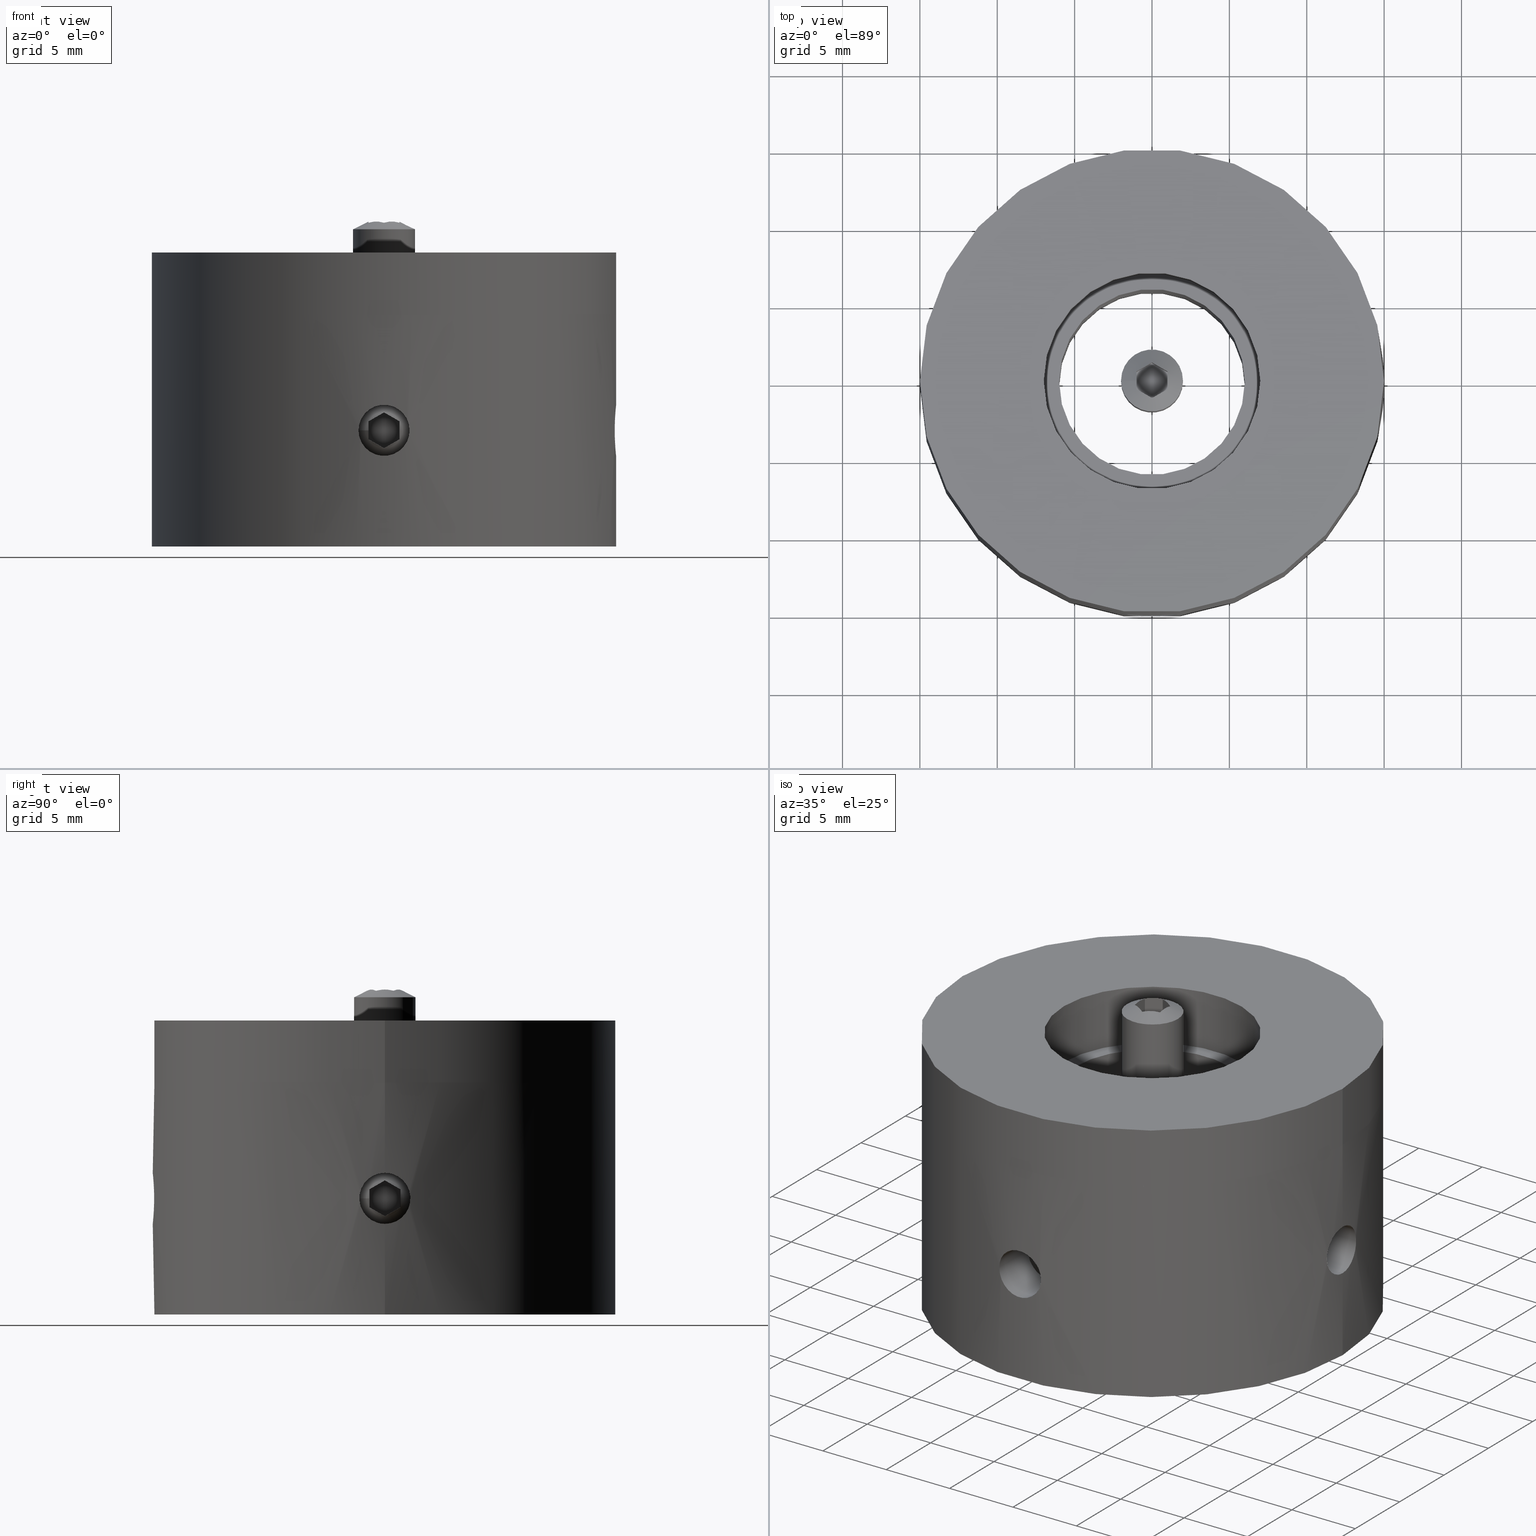
[diagram: canonical four-view strip — front | top / right | iso, engineering-drawing reading convention]
A machine part, canonical four-view strip (front | top / right | iso — engineering-drawing reading convention). The complete STEP part file that produces these views, byte-faithful:
ISO-10303-21;
HEADER;
FILE_DESCRIPTION( ( 'STEP AP203' ), '1' );
FILE_NAME( ' ', '  ', ( '  ' ), ( '  ' ), 'PSStep 10.0', '  ', '  ' );
FILE_SCHEMA( ( 'CONFIG_CONTROL_DESIGN' ) );
ENDSEC;
DATA;
#1 = DESIGN_CONTEXT( '', #115, 'design' );
#2 = APPLICATION_PROTOCOL_DEFINITION( 'INTERNATIONAL STANDARD', 'config_control_design', 1994, #115 );
#3 = PRODUCT_CATEGORY_RELATIONSHIP( 'NONE', 'NONE', #116, #117 );
#4 = DATE_AND_TIME( #118, #119 );
#5 = DATE_TIME_ROLE( 'creation_date' );
#6 = DATE_TIME_ROLE( 'classification_date' );
#7 = PERSON_AND_ORGANIZATION_ROLE( 'creator' );
#8 = PERSON_AND_ORGANIZATION_ROLE( 'design_supplier' );
#9 = PERSON_AND_ORGANIZATION_ROLE( 'classification_officer' );
#10 = PERSON_AND_ORGANIZATION_ROLE( 'design_owner' );
#11 = APPROVAL_PERSON_ORGANIZATION( #120, #121, #122 );
#12 = APPROVAL_DATE_TIME( #4, #121 );
#13 = CC_DESIGN_APPROVAL( #121, ( #123, #124, #125 ) );
#14 = CC_DESIGN_DATE_AND_TIME_ASSIGNMENT( #4, #5, ( #125 ) );
#15 = CC_DESIGN_DATE_AND_TIME_ASSIGNMENT( #4, #6, ( #123 ) );
#16 = CC_DESIGN_PERSON_AND_ORGANIZATION_ASSIGNMENT( #120, #10, ( #126 ) );
#17 = CC_DESIGN_PERSON_AND_ORGANIZATION_ASSIGNMENT( #120, #7, ( #125 ) );
#18 = CC_DESIGN_PERSON_AND_ORGANIZATION_ASSIGNMENT( #120, #7, ( #124 ) );
#19 = CC_DESIGN_PERSON_AND_ORGANIZATION_ASSIGNMENT( #120, #8, ( #124 ) );
#20 = CC_DESIGN_SECURITY_CLASSIFICATION( #123, ( #124 ) );
#21 = CC_DESIGN_PERSON_AND_ORGANIZATION_ASSIGNMENT( #120, #9, ( #123 ) );
#22 = SHAPE_DEFINITION_REPRESENTATION( #127, #128 );
#23 = DESIGN_CONTEXT( '', #129, 'design' );
#24 = APPLICATION_PROTOCOL_DEFINITION( 'INTERNATIONAL STANDARD', 'config_control_design', 1994, #129 );
#25 = PRODUCT_CATEGORY_RELATIONSHIP( 'NONE', 'NONE', #130, #131 );
#26 = DATE_AND_TIME( #132, #133 );
#27 = DATE_TIME_ROLE( 'creation_date' );
#28 = DATE_TIME_ROLE( 'classification_date' );
#29 = PERSON_AND_ORGANIZATION_ROLE( 'creator' );
#30 = PERSON_AND_ORGANIZATION_ROLE( 'design_supplier' );
#31 = PERSON_AND_ORGANIZATION_ROLE( 'classification_officer' );
#32 = PERSON_AND_ORGANIZATION_ROLE( 'design_owner' );
#33 = APPROVAL_PERSON_ORGANIZATION( #134, #135, #136 );
#34 = APPROVAL_DATE_TIME( #26, #135 );
#35 = CC_DESIGN_APPROVAL( #135, ( #137, #138, #139 ) );
#36 = CC_DESIGN_DATE_AND_TIME_ASSIGNMENT( #26, #27, ( #139 ) );
#37 = CC_DESIGN_DATE_AND_TIME_ASSIGNMENT( #26, #28, ( #137 ) );
#38 = CC_DESIGN_PERSON_AND_ORGANIZATION_ASSIGNMENT( #134, #32, ( #140 ) );
#39 = CC_DESIGN_PERSON_AND_ORGANIZATION_ASSIGNMENT( #134, #29, ( #139 ) );
#40 = CC_DESIGN_PERSON_AND_ORGANIZATION_ASSIGNMENT( #134, #29, ( #138 ) );
#41 = CC_DESIGN_PERSON_AND_ORGANIZATION_ASSIGNMENT( #134, #30, ( #138 ) );
#42 = CC_DESIGN_SECURITY_CLASSIFICATION( #137, ( #138 ) );
#43 = CC_DESIGN_PERSON_AND_ORGANIZATION_ASSIGNMENT( #134, #31, ( #137 ) );
#44 = SHAPE_DEFINITION_REPRESENTATION( #141, #142 );
#45 = DESIGN_CONTEXT( '', #143, 'design' );
#46 = APPLICATION_PROTOCOL_DEFINITION( 'INTERNATIONAL STANDARD', 'config_control_design', 1994, #143 );
#47 = PRODUCT_CATEGORY_RELATIONSHIP( 'NONE', 'NONE', #144, #145 );
#48 = DATE_AND_TIME( #146, #147 );
#49 = DATE_TIME_ROLE( 'creation_date' );
#50 = DATE_TIME_ROLE( 'classification_date' );
#51 = PERSON_AND_ORGANIZATION_ROLE( 'creator' );
#52 = PERSON_AND_ORGANIZATION_ROLE( 'design_supplier' );
#53 = PERSON_AND_ORGANIZATION_ROLE( 'classification_officer' );
#54 = PERSON_AND_ORGANIZATION_ROLE( 'design_owner' );
#55 = APPROVAL_PERSON_ORGANIZATION( #148, #149, #150 );
#56 = APPROVAL_DATE_TIME( #48, #149 );
#57 = CC_DESIGN_APPROVAL( #149, ( #151, #152, #153 ) );
#58 = CC_DESIGN_DATE_AND_TIME_ASSIGNMENT( #48, #49, ( #153 ) );
#59 = CC_DESIGN_DATE_AND_TIME_ASSIGNMENT( #48, #50, ( #151 ) );
#60 = CC_DESIGN_PERSON_AND_ORGANIZATION_ASSIGNMENT( #148, #54, ( #154 ) );
#61 = CC_DESIGN_PERSON_AND_ORGANIZATION_ASSIGNMENT( #148, #51, ( #153 ) );
#62 = CC_DESIGN_PERSON_AND_ORGANIZATION_ASSIGNMENT( #148, #51, ( #152 ) );
#63 = CC_DESIGN_PERSON_AND_ORGANIZATION_ASSIGNMENT( #148, #52, ( #152 ) );
#64 = CC_DESIGN_SECURITY_CLASSIFICATION( #151, ( #152 ) );
#65 = CC_DESIGN_PERSON_AND_ORGANIZATION_ASSIGNMENT( #148, #53, ( #151 ) );
#66 = SHAPE_DEFINITION_REPRESENTATION( #155, #156 );
#67 = DESIGN_CONTEXT( '', #157, 'design' );
#68 = APPLICATION_PROTOCOL_DEFINITION( 'INTERNATIONAL STANDARD', 'config_control_design', 1994, #157 );
#69 = PRODUCT_CATEGORY_RELATIONSHIP( 'NONE', 'NONE', #158, #159 );
#70 = DATE_AND_TIME( #160, #161 );
#71 = DATE_TIME_ROLE( 'creation_date' );
#72 = DATE_TIME_ROLE( 'classification_date' );
#73 = PERSON_AND_ORGANIZATION_ROLE( 'creator' );
#74 = PERSON_AND_ORGANIZATION_ROLE( 'design_supplier' );
#75 = PERSON_AND_ORGANIZATION_ROLE( 'classification_officer' );
#76 = PERSON_AND_ORGANIZATION_ROLE( 'design_owner' );
#77 = APPROVAL_PERSON_ORGANIZATION( #162, #163, #164 );
#78 = APPROVAL_DATE_TIME( #70, #163 );
#79 = CC_DESIGN_APPROVAL( #163, ( #165, #166, #167 ) );
#80 = CC_DESIGN_DATE_AND_TIME_ASSIGNMENT( #70, #71, ( #167 ) );
#81 = CC_DESIGN_DATE_AND_TIME_ASSIGNMENT( #70, #72, ( #165 ) );
#82 = CC_DESIGN_PERSON_AND_ORGANIZATION_ASSIGNMENT( #162, #76, ( #168 ) );
#83 = CC_DESIGN_PERSON_AND_ORGANIZATION_ASSIGNMENT( #162, #73, ( #167 ) );
#84 = CC_DESIGN_PERSON_AND_ORGANIZATION_ASSIGNMENT( #162, #73, ( #166 ) );
#85 = CC_DESIGN_PERSON_AND_ORGANIZATION_ASSIGNMENT( #162, #74, ( #166 ) );
#86 = CC_DESIGN_SECURITY_CLASSIFICATION( #165, ( #166 ) );
#87 = CC_DESIGN_PERSON_AND_ORGANIZATION_ASSIGNMENT( #162, #75, ( #165 ) );
#88 = SHAPE_DEFINITION_REPRESENTATION( #169, #170 );
#89 = DESIGN_CONTEXT( '', #171, 'design' );
#90 = APPLICATION_PROTOCOL_DEFINITION( 'INTERNATIONAL STANDARD', 'config_control_design', 1994, #171 );
#91 = PRODUCT_CATEGORY_RELATIONSHIP( 'NONE', 'NONE', #172, #173 );
#92 = DATE_AND_TIME( #174, #175 );
#93 = DATE_TIME_ROLE( 'creation_date' );
#94 = DATE_TIME_ROLE( 'classification_date' );
#95 = PERSON_AND_ORGANIZATION_ROLE( 'creator' );
#96 = PERSON_AND_ORGANIZATION_ROLE( 'design_supplier' );
#97 = PERSON_AND_ORGANIZATION_ROLE( 'classification_officer' );
#98 = PERSON_AND_ORGANIZATION_ROLE( 'design_owner' );
#99 = APPROVAL_PERSON_ORGANIZATION( #176, #177, #178 );
#100 = APPROVAL_DATE_TIME( #92, #177 );
#101 = CC_DESIGN_APPROVAL( #177, ( #179, #180, #181 ) );
#102 = CC_DESIGN_DATE_AND_TIME_ASSIGNMENT( #92, #93, ( #181 ) );
#103 = CC_DESIGN_DATE_AND_TIME_ASSIGNMENT( #92, #94, ( #179 ) );
#104 = CC_DESIGN_PERSON_AND_ORGANIZATION_ASSIGNMENT( #176, #98, ( #182 ) );
#105 = CC_DESIGN_PERSON_AND_ORGANIZATION_ASSIGNMENT( #176, #95, ( #181 ) );
#106 = CC_DESIGN_PERSON_AND_ORGANIZATION_ASSIGNMENT( #176, #95, ( #180 ) );
#107 = CC_DESIGN_PERSON_AND_ORGANIZATION_ASSIGNMENT( #176, #96, ( #180 ) );
#108 = CC_DESIGN_SECURITY_CLASSIFICATION( #179, ( #180 ) );
#109 = CC_DESIGN_PERSON_AND_ORGANIZATION_ASSIGNMENT( #176, #97, ( #179 ) );
#110 = SHAPE_DEFINITION_REPRESENTATION( #183, #184 );
#111 =  ( GEOMETRIC_REPRESENTATION_CONTEXT( 3 )GLOBAL_UNCERTAINTY_ASSIGNED_CONTEXT( ( #187 ) )GLOBAL_UNIT_ASSIGNED_CONTEXT( ( #189, #190, #191 ) )REPRESENTATION_CONTEXT( 'NONE', 'WORKSPACE' ) );
#115 = APPLICATION_CONTEXT( 'CONFIGURATION CONTROLLED 3D DESIGNS OF MECHANICAL PARTS AND ASSEMBLIES' );
#116 = PRODUCT_CATEGORY( 'part', 'NONE' );
#117 = PRODUCT_RELATED_PRODUCT_CATEGORY( 'detail', ' ', ( #126 ) );
#118 = CALENDAR_DATE( 2018, 1, 9 );
#119 = LOCAL_TIME( 8, 30, 14.0000000000000, #193 );
#120 = PERSON_AND_ORGANIZATION( #194, #195 );
#121 = APPROVAL( #196, 'SOLID MODEL' );
#122 = APPROVAL_ROLE( 'APPROVED' );
#123 = SECURITY_CLASSIFICATION( '', '', #197 );
#124 = PRODUCT_DEFINITION_FORMATION_WITH_SPECIFIED_SOURCE( ' ', 'NONE', #126, .NOT_KNOWN. );
#125 = PRODUCT_DEFINITION( 'NONE', 'NONE', #124, #1 );
#126 = PRODUCT( '1', '1', 'PART-1-DESC', ( #198 ) );
#127 = PRODUCT_DEFINITION_SHAPE( 'NONE', 'NONE', #125 );
#128 = GEOMETRICALLY_BOUNDED_WIREFRAME_SHAPE_REPRESENTATION( '1', ( #199, #200 ), #111 );
#129 = APPLICATION_CONTEXT( 'CONFIGURATION CONTROLLED 3D DESIGNS OF MECHANICAL PARTS AND ASSEMBLIES' );
#130 = PRODUCT_CATEGORY( 'part', 'NONE' );
#131 = PRODUCT_RELATED_PRODUCT_CATEGORY( 'detail', ' ', ( #140 ) );
#132 = CALENDAR_DATE( 2018, 1, 9 );
#133 = LOCAL_TIME( 8, 30, 14.0000000000000, #201 );
#134 = PERSON_AND_ORGANIZATION( #202, #203 );
#135 = APPROVAL( #204, 'SOLID MODEL' );
#136 = APPROVAL_ROLE( 'APPROVED' );
#137 = SECURITY_CLASSIFICATION( '', '', #205 );
#138 = PRODUCT_DEFINITION_FORMATION_WITH_SPECIFIED_SOURCE( ' ', 'NONE', #140, .NOT_KNOWN. );
#139 = PRODUCT_DEFINITION( 'NONE', 'NONE', #138, #23 );
#140 = PRODUCT( '2', '2', 'PART-2-DESC', ( #206 ) );
#141 = PRODUCT_DEFINITION_SHAPE( 'NONE', 'NONE', #139 );
#142 = ADVANCED_BREP_SHAPE_REPRESENTATION( '2', ( #207, #208 ), #111 );
#143 = APPLICATION_CONTEXT( 'CONFIGURATION CONTROLLED 3D DESIGNS OF MECHANICAL PARTS AND ASSEMBLIES' );
#144 = PRODUCT_CATEGORY( 'part', 'NONE' );
#145 = PRODUCT_RELATED_PRODUCT_CATEGORY( 'detail', ' ', ( #154 ) );
#146 = CALENDAR_DATE( 2018, 1, 9 );
#147 = LOCAL_TIME( 8, 30, 14.0000000000000, #209 );
#148 = PERSON_AND_ORGANIZATION( #210, #211 );
#149 = APPROVAL( #212, 'SOLID MODEL' );
#150 = APPROVAL_ROLE( 'APPROVED' );
#151 = SECURITY_CLASSIFICATION( '', '', #213 );
#152 = PRODUCT_DEFINITION_FORMATION_WITH_SPECIFIED_SOURCE( ' ', 'NONE', #154, .NOT_KNOWN. );
#153 = PRODUCT_DEFINITION( 'NONE', 'NONE', #152, #45 );
#154 = PRODUCT( '3', '3', 'PART-3-DESC', ( #214 ) );
#155 = PRODUCT_DEFINITION_SHAPE( 'NONE', 'NONE', #153 );
#156 = ADVANCED_BREP_SHAPE_REPRESENTATION( '3', ( #215, #216 ), #111 );
#157 = APPLICATION_CONTEXT( 'CONFIGURATION CONTROLLED 3D DESIGNS OF MECHANICAL PARTS AND ASSEMBLIES' );
#158 = PRODUCT_CATEGORY( 'part', 'NONE' );
#159 = PRODUCT_RELATED_PRODUCT_CATEGORY( 'detail', ' ', ( #168 ) );
#160 = CALENDAR_DATE( 2018, 1, 9 );
#161 = LOCAL_TIME( 8, 30, 14.0000000000000, #217 );
#162 = PERSON_AND_ORGANIZATION( #218, #219 );
#163 = APPROVAL( #220, 'SOLID MODEL' );
#164 = APPROVAL_ROLE( 'APPROVED' );
#165 = SECURITY_CLASSIFICATION( '', '', #221 );
#166 = PRODUCT_DEFINITION_FORMATION_WITH_SPECIFIED_SOURCE( ' ', 'NONE', #168, .NOT_KNOWN. );
#167 = PRODUCT_DEFINITION( 'NONE', 'NONE', #166, #67 );
#168 = PRODUCT( 'Assem1', 'Assem1', 'PART-Assem1-DESC', ( #222 ) );
#169 = PRODUCT_DEFINITION_SHAPE( 'NONE', 'NONE', #167 );
#170 = ADVANCED_BREP_SHAPE_REPRESENTATION( 'Assem1', ( #223, #224, #225 ), #111 );
#171 = APPLICATION_CONTEXT( 'CONFIGURATION CONTROLLED 3D DESIGNS OF MECHANICAL PARTS AND ASSEMBLIES' );
#172 = PRODUCT_CATEGORY( 'part', 'NONE' );
#173 = PRODUCT_RELATED_PRODUCT_CATEGORY( 'detail', ' ', ( #182 ) );
#174 = CALENDAR_DATE( 2018, 1, 9 );
#175 = LOCAL_TIME( 8, 30, 14.0000000000000, #226 );
#176 = PERSON_AND_ORGANIZATION( #227, #228 );
#177 = APPROVAL( #229, 'SOLID MODEL' );
#178 = APPROVAL_ROLE( 'APPROVED' );
#179 = SECURITY_CLASSIFICATION( '', '', #230 );
#180 = PRODUCT_DEFINITION_FORMATION_WITH_SPECIFIED_SOURCE( ' ', 'NONE', #182, .NOT_KNOWN. );
#181 = PRODUCT_DEFINITION( 'NONE', 'NONE', #180, #89 );
#182 = PRODUCT( '4', '4', 'PART-4-DESC', ( #231 ) );
#183 = PRODUCT_DEFINITION_SHAPE( 'NONE', 'NONE', #181 );
#184 = ADVANCED_BREP_SHAPE_REPRESENTATION( '4', ( #232 ), #111 );
#187 = UNCERTAINTY_MEASURE_WITH_UNIT( LENGTH_MEASURE( 0.00100000000000000 ), #189, '', '' );
#189 =  ( CONVERSION_BASED_UNIT( 'MILLIMETRE', #235 )LENGTH_UNIT(  )NAMED_UNIT( #238 ) );
#190 =  ( NAMED_UNIT( #240 )PLANE_ANGLE_UNIT(  )SI_UNIT( $, .RADIAN. ) );
#191 =  ( NAMED_UNIT( #240 )SI_UNIT( $, .STERADIAN. )SOLID_ANGLE_UNIT(  ) );
#193 = COORDINATED_UNIVERSAL_TIME_OFFSET( 9, 0, .AHEAD. );
#194 = PERSON( '', 'UNSPECIFIED', $, $, $, $ );
#195 = ORGANIZATION( 'UNSPECIFIED', 'UNSPECIFIED', 'UNSPECIFIED' );
#196 = APPROVAL_STATUS( 'approved' );
#197 = SECURITY_CLASSIFICATION_LEVEL( 'unclassified' );
#198 = MECHANICAL_CONTEXT( '', #115, 'mechanical' );
#199 = GEOMETRIC_CURVE_SET( '1', ( #246 ) );
#200 = AXIS2_PLACEMENT_3D( '', #247, #248, #249 );
#201 = COORDINATED_UNIVERSAL_TIME_OFFSET( 9, 0, .AHEAD. );
#202 = PERSON( '', 'UNSPECIFIED', $, $, $, $ );
#203 = ORGANIZATION( 'UNSPECIFIED', 'UNSPECIFIED', 'UNSPECIFIED' );
#204 = APPROVAL_STATUS( 'approved' );
#205 = SECURITY_CLASSIFICATION_LEVEL( 'unclassified' );
#206 = MECHANICAL_CONTEXT( '', #129, 'mechanical' );
#207 = MANIFOLD_SOLID_BREP( '2', #250 );
#208 = AXIS2_PLACEMENT_3D( '', #251, #252, #253 );
#209 = COORDINATED_UNIVERSAL_TIME_OFFSET( 9, 0, .AHEAD. );
#210 = PERSON( '', 'UNSPECIFIED', $, $, $, $ );
#211 = ORGANIZATION( 'UNSPECIFIED', 'UNSPECIFIED', 'UNSPECIFIED' );
#212 = APPROVAL_STATUS( 'approved' );
#213 = SECURITY_CLASSIFICATION_LEVEL( 'unclassified' );
#214 = MECHANICAL_CONTEXT( '', #143, 'mechanical' );
#215 = MANIFOLD_SOLID_BREP( '3', #254 );
#216 = AXIS2_PLACEMENT_3D( '', #255, #256, #257 );
#217 = COORDINATED_UNIVERSAL_TIME_OFFSET( 9, 0, .AHEAD. );
#218 = PERSON( '', 'UNSPECIFIED', $, $, $, $ );
#219 = ORGANIZATION( 'UNSPECIFIED', 'UNSPECIFIED', 'UNSPECIFIED' );
#220 = APPROVAL_STATUS( 'approved' );
#221 = SECURITY_CLASSIFICATION_LEVEL( 'unclassified' );
#222 = MECHANICAL_CONTEXT( '', #157, 'mechanical' );
#223 = MAPPED_ITEM( '', #258, #259 );
#224 = MAPPED_ITEM( '', #260, #261 );
#225 = AXIS2_PLACEMENT_3D( '', #262, #263, #264 );
#226 = COORDINATED_UNIVERSAL_TIME_OFFSET( 9, 0, .AHEAD. );
#227 = PERSON( '', 'UNSPECIFIED', $, $, $, $ );
#228 = ORGANIZATION( 'UNSPECIFIED', 'UNSPECIFIED', 'UNSPECIFIED' );
#229 = APPROVAL_STATUS( 'approved' );
#230 = SECURITY_CLASSIFICATION_LEVEL( 'unclassified' );
#231 = MECHANICAL_CONTEXT( '', #171, 'mechanical' );
#232 = MANIFOLD_SOLID_BREP( '4', #265 );
#235 = LENGTH_MEASURE_WITH_UNIT( LENGTH_MEASURE( 1.00000000000000 ), #266 );
#238 = DIMENSIONAL_EXPONENTS( 1.00000000000000, 0.000000000000000, 0.000000000000000, 0.000000000000000, 0.000000000000000, 0.000000000000000, 0.000000000000000 );
#240 = DIMENSIONAL_EXPONENTS( 0.000000000000000, 0.000000000000000, 0.000000000000000, 0.000000000000000, 0.000000000000000, 0.000000000000000, 0.000000000000000 );
#246 = TRIMMED_CURVE( '', #267, ( CARTESIAN_POINT( #268 ) ), ( CARTESIAN_POINT( #269 ) ), .T., .UNSPECIFIED. );
#247 = CARTESIAN_POINT( '', ( 0.000000000000000, 0.000000000000000, 0.000000000000000 ) );
#248 = DIRECTION( '', ( 0.000000000000000, 0.000000000000000, 1.00000000000000 ) );
#249 = DIRECTION( '', ( 1.00000000000000, 0.000000000000000, 0.000000000000000 ) );
#250 = CLOSED_SHELL( '', ( #270, #271, #272, #273, #274, #275 ) );
#251 = CARTESIAN_POINT( '', ( 0.000000000000000, 0.000000000000000, 0.000000000000000 ) );
#252 = DIRECTION( '', ( 0.000000000000000, 0.000000000000000, 1.00000000000000 ) );
#253 = DIRECTION( '', ( 1.00000000000000, 0.000000000000000, 0.000000000000000 ) );
#254 = CLOSED_SHELL( '', ( #276, #277, #278, #279 ) );
#255 = CARTESIAN_POINT( '', ( 0.000000000000000, 0.000000000000000, 0.000000000000000 ) );
#256 = DIRECTION( '', ( 0.000000000000000, 0.000000000000000, 1.00000000000000 ) );
#257 = DIRECTION( '', ( 1.00000000000000, 0.000000000000000, 0.000000000000000 ) );
#258 = REPRESENTATION_MAP( #225, #184 );
#259 = AXIS2_PLACEMENT_3D( '', #280, #281, #282 );
#260 = REPRESENTATION_MAP( #225, #184 );
#261 = AXIS2_PLACEMENT_3D( '', #283, #284, #285 );
#262 = CARTESIAN_POINT( '', ( 0.000000000000000, 0.000000000000000, 0.000000000000000 ) );
#263 = DIRECTION( '', ( 0.000000000000000, 0.000000000000000, 1.00000000000000 ) );
#264 = DIRECTION( '', ( 1.00000000000000, 0.000000000000000, 0.000000000000000 ) );
#265 = CLOSED_SHELL( '', ( #286, #287, #288, #289, #290, #291, #292, #293, #294, #295, #296 ) );
#266 =  ( LENGTH_UNIT(  )NAMED_UNIT( #238 )SI_UNIT( .MILLI., .METRE. ) );
#267 = LINE( '', #298, #299 );
#268 = CARTESIAN_POINT( '', ( -150.000000000000, 0.000000000000000, 0.000000000000000 ) );
#269 = CARTESIAN_POINT( '', ( 150.000000000000, 0.000000000000000, 0.000000000000000 ) );
#270 = ADVANCED_FACE( '', ( #300, #301, #302, #303 ), #304, .T. );
#271 = ADVANCED_FACE( '', ( #305, #306, #307, #308 ), #309, .F. );
#272 = ADVANCED_FACE( '', ( #310, #311 ), #312, .F. );
#273 = ADVANCED_FACE( '', ( #313, #314 ), #315, .F. );
#274 = ADVANCED_FACE( '', ( #316, #317 ), #318, .T. );
#275 = ADVANCED_FACE( '', ( #319, #320 ), #321, .F. );
#276 = ADVANCED_FACE( '', ( #322, #323 ), #324, .T. );
#277 = ADVANCED_FACE( '', ( #325, #326 ), #327, .F. );
#278 = ADVANCED_FACE( '', ( #328, #329 ), #330, .F. );
#279 = ADVANCED_FACE( '', ( #331, #332 ), #333, .T. );
#280 = CARTESIAN_POINT( '', ( 0.000000000000000, -6.00000000000000, -7.50000000000000 ) );
#281 = DIRECTION( '', ( 0.000000000000000, -1.00000000000000, 0.000000000000000 ) );
#282 = DIRECTION( '', ( 1.00000000000000, 0.000000000000000, 0.000000000000000 ) );
#283 = CARTESIAN_POINT( '', ( 6.00000000000000, -3.67381906146713E-016, -7.50000000000000 ) );
#284 = DIRECTION( '', ( 1.00000000000000, -6.12303176911189E-017, 0.000000000000000 ) );
#285 = DIRECTION( '', ( 6.12303176911189E-017, 1.00000000000000, 0.000000000000000 ) );
#286 = ADVANCED_FACE( '', ( #334, #335 ), #336, .T. );
#287 = ADVANCED_FACE( '', ( #337, #338 ), #339, .F. );
#288 = ADVANCED_FACE( '', ( #340 ), #341, .T. );
#289 = ADVANCED_FACE( '', ( #342 ), #343, .T. );
#290 = ADVANCED_FACE( '', ( #344 ), #345, .T. );
#291 = ADVANCED_FACE( '', ( #346 ), #347, .T. );
#292 = ADVANCED_FACE( '', ( #348 ), #349, .T. );
#293 = ADVANCED_FACE( '', ( #350 ), #351, .T. );
#294 = ADVANCED_FACE( '', ( #352 ), #353, .T. );
#295 = ADVANCED_FACE( '', ( #354, #355 ), #356, .T. );
#296 = ADVANCED_FACE( '', ( #357, #358 ), #359, .T. );
#298 = CARTESIAN_POINT( '', ( -150.000000000000, 0.000000000000000, 0.000000000000000 ) );
#299 = VECTOR( '', #360, 1000.00000000000 );
#300 = FACE_BOUND( '', #361, .T. );
#301 = FACE_BOUND( '', #362, .T. );
#302 = FACE_OUTER_BOUND( '', #363, .T. );
#303 = FACE_OUTER_BOUND( '', #364, .T. );
#304 = CYLINDRICAL_SURFACE( '', #365, 15.0000000000000 );
#305 = FACE_BOUND( '', #366, .T. );
#306 = FACE_BOUND( '', #367, .T. );
#307 = FACE_OUTER_BOUND( '', #368, .T. );
#308 = FACE_OUTER_BOUND( '', #369, .T. );
#309 = CYLINDRICAL_SURFACE( '', #370, 6.00000000000000 );
#310 = FACE_OUTER_BOUND( '', #371, .T. );
#311 = FACE_OUTER_BOUND( '', #372, .T. );
#312 = CYLINDRICAL_SURFACE( '', #373, 1.65000000000000 );
#313 = FACE_OUTER_BOUND( '', #374, .T. );
#314 = FACE_OUTER_BOUND( '', #375, .T. );
#315 = CYLINDRICAL_SURFACE( '', #376, 1.65000000000000 );
#316 = FACE_OUTER_BOUND( '', #377, .T. );
#317 = FACE_BOUND( '', #378, .T. );
#318 = PLANE( '', #379 );
#319 = FACE_OUTER_BOUND( '', #380, .T. );
#320 = FACE_BOUND( '', #381, .T. );
#321 = PLANE( '', #382 );
#322 = FACE_OUTER_BOUND( '', #383, .T. );
#323 = FACE_OUTER_BOUND( '', #384, .T. );
#324 = CYLINDRICAL_SURFACE( '', #385, 15.0000000000000 );
#325 = FACE_OUTER_BOUND( '', #386, .T. );
#326 = FACE_BOUND( '', #387, .T. );
#327 = PLANE( '', #388 );
#328 = FACE_OUTER_BOUND( '', #389, .T. );
#329 = FACE_OUTER_BOUND( '', #390, .T. );
#330 = CYLINDRICAL_SURFACE( '', #391, 7.00000000000000 );
#331 = FACE_OUTER_BOUND( '', #392, .T. );
#332 = FACE_BOUND( '', #393, .T. );
#333 = PLANE( '', #394 );
#334 = FACE_OUTER_BOUND( '', #395, .T. );
#335 = FACE_BOUND( '', #396, .T. );
#336 = CONICAL_SURFACE( '', #397, 2.00000000000000, 1.10714871779409 );
#337 = FACE_OUTER_BOUND( '', #398, .T. );
#338 = FACE_BOUND( '', #399, .T. );
#339 = CONICAL_SURFACE( '', #400, 865.768711028376, 1.04668439371294 );
#340 = FACE_OUTER_BOUND( '', #401, .T. );
#341 = PLANE( '', #402 );
#342 = FACE_OUTER_BOUND( '', #403, .T. );
#343 = PLANE( '', #404 );
#344 = FACE_OUTER_BOUND( '', #405, .T. );
#345 = PLANE( '', #406 );
#346 = FACE_OUTER_BOUND( '', #407, .T. );
#347 = PLANE( '', #408 );
#348 = FACE_OUTER_BOUND( '', #409, .T. );
#349 = PLANE( '', #410 );
#350 = FACE_OUTER_BOUND( '', #411, .T. );
#351 = PLANE( '', #412 );
#352 = FACE_OUTER_BOUND( '', #413, .T. );
#353 = PLANE( '', #414 );
#354 = FACE_OUTER_BOUND( '', #415, .T. );
#355 = FACE_OUTER_BOUND( '', #416, .T. );
#356 = CYLINDRICAL_SURFACE( '', #417, 2.00000000000000 );
#357 = FACE_OUTER_BOUND( '', #418, .T. );
#358 = FACE_BOUND( '', #419, .T. );
#359 = CONICAL_SURFACE( '', #420, 1.00000000000000, 0.785398163397448 );
#360 = DIRECTION( '', ( 1.00000000000000, 0.000000000000000, 0.000000000000000 ) );
#361 = EDGE_LOOP( '', ( #421 ) );
#362 = EDGE_LOOP( '', ( #422 ) );
#363 = EDGE_LOOP( '', ( #423 ) );
#364 = EDGE_LOOP( '', ( #424 ) );
#365 = AXIS2_PLACEMENT_3D( '', #425, #426, #427 );
#366 = EDGE_LOOP( '', ( #428 ) );
#367 = EDGE_LOOP( '', ( #429 ) );
#368 = EDGE_LOOP( '', ( #430 ) );
#369 = EDGE_LOOP( '', ( #431 ) );
#370 = AXIS2_PLACEMENT_3D( '', #432, #433, #434 );
#371 = EDGE_LOOP( '', ( #435 ) );
#372 = EDGE_LOOP( '', ( #436 ) );
#373 = AXIS2_PLACEMENT_3D( '', #437, #438, #439 );
#374 = EDGE_LOOP( '', ( #440 ) );
#375 = EDGE_LOOP( '', ( #441 ) );
#376 = AXIS2_PLACEMENT_3D( '', #442, #443, #444 );
#377 = EDGE_LOOP( '', ( #445 ) );
#378 = EDGE_LOOP( '', ( #446 ) );
#379 = AXIS2_PLACEMENT_3D( '', #447, #448, #449 );
#380 = EDGE_LOOP( '', ( #450 ) );
#381 = EDGE_LOOP( '', ( #451 ) );
#382 = AXIS2_PLACEMENT_3D( '', #452, #453, #454 );
#383 = EDGE_LOOP( '', ( #455 ) );
#384 = EDGE_LOOP( '', ( #456 ) );
#385 = AXIS2_PLACEMENT_3D( '', #457, #458, #459 );
#386 = EDGE_LOOP( '', ( #460 ) );
#387 = EDGE_LOOP( '', ( #461 ) );
#388 = AXIS2_PLACEMENT_3D( '', #462, #463, #464 );
#389 = EDGE_LOOP( '', ( #465 ) );
#390 = EDGE_LOOP( '', ( #466 ) );
#391 = AXIS2_PLACEMENT_3D( '', #467, #468, #469 );
#392 = EDGE_LOOP( '', ( #470 ) );
#393 = EDGE_LOOP( '', ( #471 ) );
#394 = AXIS2_PLACEMENT_3D( '', #472, #473, #474 );
#395 = EDGE_LOOP( '', ( #475 ) );
#396 = EDGE_LOOP( '', ( #476, #477, #478, #479, #480, #481 ) );
#397 = AXIS2_PLACEMENT_3D( '', #482, #483, #484 );
#398 = EDGE_LOOP( '', ( #485 ) );
#399 = VERTEX_LOOP( '', #486 );
#400 = AXIS2_PLACEMENT_3D( '', #487, #488, #489 );
#401 = EDGE_LOOP( '', ( #490, #491, #492, #493 ) );
#402 = AXIS2_PLACEMENT_3D( '', #494, #495, #496 );
#403 = EDGE_LOOP( '', ( #497, #498, #499, #500 ) );
#404 = AXIS2_PLACEMENT_3D( '', #501, #502, #503 );
#405 = EDGE_LOOP( '', ( #504, #505, #506, #507, #508, #509 ) );
#406 = AXIS2_PLACEMENT_3D( '', #510, #511, #512 );
#407 = EDGE_LOOP( '', ( #513, #514, #515, #516 ) );
#408 = AXIS2_PLACEMENT_3D( '', #517, #518, #519 );
#409 = EDGE_LOOP( '', ( #520, #521, #522, #523 ) );
#410 = AXIS2_PLACEMENT_3D( '', #524, #525, #526 );
#411 = EDGE_LOOP( '', ( #527, #528, #529, #530 ) );
#412 = AXIS2_PLACEMENT_3D( '', #531, #532, #533 );
#413 = EDGE_LOOP( '', ( #534, #535, #536, #537 ) );
#414 = AXIS2_PLACEMENT_3D( '', #538, #539, #540 );
#415 = EDGE_LOOP( '', ( #541 ) );
#416 = EDGE_LOOP( '', ( #542 ) );
#417 = AXIS2_PLACEMENT_3D( '', #543, #544, #545 );
#418 = EDGE_LOOP( '', ( #546 ) );
#419 = EDGE_LOOP( '', ( #547 ) );
#420 = AXIS2_PLACEMENT_3D( '', #548, #549, #550 );
#421 = ORIENTED_EDGE( '', *, *, #551, .F. );
#422 = ORIENTED_EDGE( '', *, *, #552, .F. );
#423 = ORIENTED_EDGE( '', *, *, #553, .T. );
#424 = ORIENTED_EDGE( '', *, *, #554, .F. );
#425 = CARTESIAN_POINT( '', ( 0.000000000000000, 0.000000000000000, -15.0000000000000 ) );
#426 = DIRECTION( '', ( -0.000000000000000, 0.000000000000000, -1.00000000000000 ) );
#427 = DIRECTION( '', ( 1.00000000000000, 0.000000000000000, 0.000000000000000 ) );
#428 = ORIENTED_EDGE( '', *, *, #555, .T. );
#429 = ORIENTED_EDGE( '', *, *, #556, .T. );
#430 = ORIENTED_EDGE( '', *, *, #557, .F. );
#431 = ORIENTED_EDGE( '', *, *, #558, .T. );
#432 = CARTESIAN_POINT( '', ( 0.000000000000000, 0.000000000000000, -15.0000000000000 ) );
#433 = DIRECTION( '', ( -0.000000000000000, 0.000000000000000, -1.00000000000000 ) );
#434 = DIRECTION( '', ( 1.00000000000000, 0.000000000000000, 0.000000000000000 ) );
#435 = ORIENTED_EDGE( '', *, *, #552, .T. );
#436 = ORIENTED_EDGE( '', *, *, #556, .F. );
#437 = CARTESIAN_POINT( '', ( 12.0000000000000, -7.34763812293426E-016, -7.50000000000000 ) );
#438 = DIRECTION( '', ( -1.00000000000000, 6.12303176911189E-017, -0.000000000000000 ) );
#439 = DIRECTION( '', ( 6.12303176911189E-017, 1.00000000000000, 0.000000000000000 ) );
#440 = ORIENTED_EDGE( '', *, *, #551, .T. );
#441 = ORIENTED_EDGE( '', *, *, #555, .F. );
#442 = CARTESIAN_POINT( '', ( 0.000000000000000, -12.0000000000000, -7.50000000000000 ) );
#443 = DIRECTION( '', ( -0.000000000000000, 1.00000000000000, -0.000000000000000 ) );
#444 = DIRECTION( '', ( 1.00000000000000, 0.000000000000000, 0.000000000000000 ) );
#445 = ORIENTED_EDGE( '', *, *, #554, .T. );
#446 = ORIENTED_EDGE( '', *, *, #558, .F. );
#447 = CARTESIAN_POINT( '', ( 0.000000000000000, 0.000000000000000, 0.000000000000000 ) );
#448 = DIRECTION( '', ( 0.000000000000000, 0.000000000000000, 1.00000000000000 ) );
#449 = DIRECTION( '', ( 1.00000000000000, 0.000000000000000, 0.000000000000000 ) );
#450 = ORIENTED_EDGE( '', *, *, #553, .F. );
#451 = ORIENTED_EDGE( '', *, *, #557, .T. );
#452 = CARTESIAN_POINT( '', ( 0.000000000000000, 0.000000000000000, -15.0000000000000 ) );
#453 = DIRECTION( '', ( 0.000000000000000, 0.000000000000000, 1.00000000000000 ) );
#454 = DIRECTION( '', ( 1.00000000000000, 0.000000000000000, 0.000000000000000 ) );
#455 = ORIENTED_EDGE( '', *, *, #559, .F. );
#456 = ORIENTED_EDGE( '', *, *, #560, .T. );
#457 = CARTESIAN_POINT( '', ( 0.000000000000000, 0.000000000000000, 4.00000000000000 ) );
#458 = DIRECTION( '', ( 0.000000000000000, -0.000000000000000, 1.00000000000000 ) );
#459 = DIRECTION( '', ( -1.00000000000000, 0.000000000000000, 0.000000000000000 ) );
#460 = ORIENTED_EDGE( '', *, *, #560, .F. );
#461 = ORIENTED_EDGE( '', *, *, #561, .T. );
#462 = CARTESIAN_POINT( '', ( 0.000000000000000, 0.000000000000000, 0.000000000000000 ) );
#463 = DIRECTION( '', ( 0.000000000000000, 0.000000000000000, 1.00000000000000 ) );
#464 = DIRECTION( '', ( 1.00000000000000, 0.000000000000000, 0.000000000000000 ) );
#465 = ORIENTED_EDGE( '', *, *, #562, .T. );
#466 = ORIENTED_EDGE( '', *, *, #561, .F. );
#467 = CARTESIAN_POINT( '', ( 0.000000000000000, 0.000000000000000, 4.00000000000000 ) );
#468 = DIRECTION( '', ( 0.000000000000000, -0.000000000000000, 1.00000000000000 ) );
#469 = DIRECTION( '', ( -1.00000000000000, 0.000000000000000, 0.000000000000000 ) );
#470 = ORIENTED_EDGE( '', *, *, #559, .T. );
#471 = ORIENTED_EDGE( '', *, *, #562, .F. );
#472 = CARTESIAN_POINT( '', ( 0.000000000000000, 0.000000000000000, 4.00000000000000 ) );
#473 = DIRECTION( '', ( 0.000000000000000, 0.000000000000000, 1.00000000000000 ) );
#474 = DIRECTION( '', ( 1.00000000000000, 0.000000000000000, 0.000000000000000 ) );
#475 = ORIENTED_EDGE( '', *, *, #563, .F. );
#476 = ORIENTED_EDGE( '', *, *, #564, .T. );
#477 = ORIENTED_EDGE( '', *, *, #565, .T. );
#478 = ORIENTED_EDGE( '', *, *, #566, .T. );
#479 = ORIENTED_EDGE( '', *, *, #567, .T. );
#480 = ORIENTED_EDGE( '', *, *, #568, .T. );
#481 = ORIENTED_EDGE( '', *, *, #569, .T. );
#482 = CARTESIAN_POINT( '', ( 0.000000000000000, 0.000000000000000, 5.50000000000000 ) );
#483 = DIRECTION( '', ( -0.000000000000000, -0.000000000000000, -1.00000000000000 ) );
#484 = DIRECTION( '', ( -1.00000000000000, 0.000000000000000, 0.000000000000000 ) );
#485 = ORIENTED_EDGE( '', *, *, #570, .T. );
#486 = VERTEX_POINT( '', #571 );
#487 = CARTESIAN_POINT( '', ( 0.000000000000000, 0.000000000000000, -499.866306882837 ) );
#488 = DIRECTION( '', ( -0.000000000000000, -0.000000000000000, -1.00000000000000 ) );
#489 = DIRECTION( '', ( -1.00000000000000, 0.000000000000000, 0.000000000000000 ) );
#490 = ORIENTED_EDGE( '', *, *, #572, .T. );
#491 = ORIENTED_EDGE( '', *, *, #573, .F. );
#492 = ORIENTED_EDGE( '', *, *, #574, .F. );
#493 = ORIENTED_EDGE( '', *, *, #567, .F. );
#494 = CARTESIAN_POINT( '', ( 1.00000000000000, -0.577350269189626, 11.7462112512353 ) );
#495 = DIRECTION( '', ( -1.00000000000000, 3.75578649684290E-016, 0.000000000000000 ) );
#496 = DIRECTION( '', ( -3.75578649684290E-016, -1.00000000000000, 0.000000000000000 ) );
#497 = ORIENTED_EDGE( '', *, *, #575, .T. );
#498 = ORIENTED_EDGE( '', *, *, #576, .F. );
#499 = ORIENTED_EDGE( '', *, *, #572, .F. );
#500 = ORIENTED_EDGE( '', *, *, #566, .F. );
#501 = CARTESIAN_POINT( '', ( 1.00000000000000, 0.577350269189626, 11.7462112512353 ) );
#502 = DIRECTION( '', ( -0.500000000000000, -0.866025403784439, 0.000000000000000 ) );
#503 = DIRECTION( '', ( 0.866025403784439, -0.500000000000000, 0.000000000000000 ) );
#504 = ORIENTED_EDGE( '', *, *, #573, .T. );
#505 = ORIENTED_EDGE( '', *, *, #576, .T. );
#506 = ORIENTED_EDGE( '', *, *, #577, .T. );
#507 = ORIENTED_EDGE( '', *, *, #578, .T. );
#508 = ORIENTED_EDGE( '', *, *, #579, .T. );
#509 = ORIENTED_EDGE( '', *, *, #580, .T. );
#510 = CARTESIAN_POINT( '', ( 1.00000000000000, 0.577350269189626, 3.50000000000000 ) );
#511 = DIRECTION( '', ( 0.000000000000000, -0.000000000000000, 1.00000000000000 ) );
#512 = DIRECTION( '', ( 1.00000000000000, 0.000000000000000, -0.000000000000000 ) );
#513 = ORIENTED_EDGE( '', *, *, #574, .T. );
#514 = ORIENTED_EDGE( '', *, *, #580, .F. );
#515 = ORIENTED_EDGE( '', *, *, #581, .F. );
#516 = ORIENTED_EDGE( '', *, *, #568, .F. );
#517 = CARTESIAN_POINT( '', ( -2.12108042409203E-016, -1.15470053837925, 11.7462112512353 ) );
#518 = DIRECTION( '', ( -0.500000000000000, 0.866025403784439, 0.000000000000000 ) );
#519 = DIRECTION( '', ( -0.866025403784439, -0.500000000000000, 0.000000000000000 ) );
#520 = ORIENTED_EDGE( '', *, *, #581, .T. );
#521 = ORIENTED_EDGE( '', *, *, #579, .F. );
#522 = ORIENTED_EDGE( '', *, *, #582, .F. );
#523 = ORIENTED_EDGE( '', *, *, #569, .F. );
#524 = CARTESIAN_POINT( '', ( -1.00000000000000, -0.577350269189626, 11.7462112512353 ) );
#525 = DIRECTION( '', ( 0.500000000000000, 0.866025403784439, -0.000000000000000 ) );
#526 = DIRECTION( '', ( -0.866025403784439, 0.500000000000000, 0.000000000000000 ) );
#527 = ORIENTED_EDGE( '', *, *, #582, .T. );
#528 = ORIENTED_EDGE( '', *, *, #578, .F. );
#529 = ORIENTED_EDGE( '', *, *, #583, .F. );
#530 = ORIENTED_EDGE( '', *, *, #564, .F. );
#531 = CARTESIAN_POINT( '', ( -1.00000000000000, 0.577350269189626, 11.7462112512353 ) );
#532 = DIRECTION( '', ( 1.00000000000000, 1.87789324842145E-016, -0.000000000000000 ) );
#533 = DIRECTION( '', ( -1.87789324842145E-016, 1.00000000000000, 0.000000000000000 ) );
#534 = ORIENTED_EDGE( '', *, *, #583, .T. );
#535 = ORIENTED_EDGE( '', *, *, #577, .F. );
#536 = ORIENTED_EDGE( '', *, *, #575, .F. );
#537 = ORIENTED_EDGE( '', *, *, #565, .F. );
#538 = CARTESIAN_POINT( '', ( 7.07026808030676E-017, 1.15470053837925, 11.7462112512353 ) );
#539 = DIRECTION( '', ( 0.500000000000000, -0.866025403784439, 0.000000000000000 ) );
#540 = DIRECTION( '', ( 0.866025403784439, 0.500000000000000, 0.000000000000000 ) );
#541 = ORIENTED_EDGE( '', *, *, #563, .T. );
#542 = ORIENTED_EDGE( '', *, *, #584, .F. );
#543 = CARTESIAN_POINT( '', ( 0.000000000000000, 0.000000000000000, 0.000000000000000 ) );
#544 = DIRECTION( '', ( 0.000000000000000, -0.000000000000000, 1.00000000000000 ) );
#545 = DIRECTION( '', ( -1.00000000000000, 0.000000000000000, 0.000000000000000 ) );
#546 = ORIENTED_EDGE( '', *, *, #584, .T. );
#547 = ORIENTED_EDGE( '', *, *, #570, .F. );
#548 = CARTESIAN_POINT( '', ( 0.000000000000000, 0.000000000000000, -1.08420217248550E-016 ) );
#549 = DIRECTION( '', ( 0.000000000000000, -0.000000000000000, 1.00000000000000 ) );
#550 = DIRECTION( '', ( 1.00000000000000, 0.000000000000000, -0.000000000000000 ) );
#551 = EDGE_CURVE( '', #585, #585, #586, .T. );
#552 = EDGE_CURVE( '', #587, #587, #588, .T. );
#553 = EDGE_CURVE( '', #589, #589, #590, .T. );
#554 = EDGE_CURVE( '', #591, #591, #592, .T. );
#555 = EDGE_CURVE( '', #593, #593, #594, .T. );
#556 = EDGE_CURVE( '', #595, #595, #596, .T. );
#557 = EDGE_CURVE( '', #597, #597, #598, .T. );
#558 = EDGE_CURVE( '', #599, #599, #600, .T. );
#559 = EDGE_CURVE( '', #601, #601, #602, .T. );
#560 = EDGE_CURVE( '', #603, #603, #604, .T. );
#561 = EDGE_CURVE( '', #605, #605, #606, .T. );
#562 = EDGE_CURVE( '', #607, #607, #608, .T. );
#563 = EDGE_CURVE( '', #609, #609, #610, .T. );
#564 = EDGE_CURVE( '', #611, #612, #613, .T. );
#565 = EDGE_CURVE( '', #612, #614, #615, .T. );
#566 = EDGE_CURVE( '', #614, #616, #617, .T. );
#567 = EDGE_CURVE( '', #616, #618, #619, .F. );
#568 = EDGE_CURVE( '', #618, #620, #621, .T. );
#569 = EDGE_CURVE( '', #620, #611, #622, .T. );
#570 = EDGE_CURVE( '', #623, #623, #624, .T. );
#571 = CARTESIAN_POINT( '', ( 0.000000000000000, 0.000000000000000, 0.578034682000000 ) );
#572 = EDGE_CURVE( '', #616, #625, #626, .T. );
#573 = EDGE_CURVE( '', #627, #625, #628, .T. );
#574 = EDGE_CURVE( '', #618, #627, #629, .T. );
#575 = EDGE_CURVE( '', #614, #630, #631, .T. );
#576 = EDGE_CURVE( '', #625, #630, #632, .T. );
#577 = EDGE_CURVE( '', #630, #633, #634, .T. );
#578 = EDGE_CURVE( '', #633, #635, #636, .T. );
#579 = EDGE_CURVE( '', #635, #637, #638, .T. );
#580 = EDGE_CURVE( '', #637, #627, #639, .T. );
#581 = EDGE_CURVE( '', #620, #637, #640, .T. );
#582 = EDGE_CURVE( '', #611, #635, #641, .T. );
#583 = EDGE_CURVE( '', #612, #633, #642, .T. );
#584 = EDGE_CURVE( '', #643, #643, #644, .T. );
#585 = VERTEX_POINT( '', #645 );
#586 = B_SPLINE_CURVE_WITH_KNOTS( '', 3, ( #646, #647, #648, #649, #650, #651, #652, #653, #654, #655, #656, #657, #658, #659, #660, #661, #662, #663, #664, #665, #666, #667, #668, #669, #670, #671, #672, #673, #674, #675, #676, #677, #678, #679, #680, #681, #682, #683, #684, #685, #686, #687, #688, #689, #690, #691, #692, #693, #694, #695, #696, #697, #698, #699 ), .UNSPECIFIED., .T., .F., ( 2, 2, 2, 2, 2, 2, 2, 2, 2, 2, 2, 2, 2, 2, 2, 2, 2, 2, 2, 2, 2, 2, 2, 2, 2, 2, 2, 2, 2 ), ( -0.000645243045229336, 0.000000000000000, 0.000322621522614668, 0.000645243045229336, 0.000967864567844005, 0.00129048609045867, 0.00193572913568801, 0.00258097218091735, 0.00290359370353201, 0.00322621522614668, 0.00354883674876135, 0.00387145827137602, 0.00419407979399069, 0.00451670131660535, 0.00483932283922002, 0.00516194436183469, 0.00580718740706402, 0.00645243045229336, 0.00677505197490803, 0.00709767349752269, 0.00742029502013736, 0.00774291654275203, 0.00806553806536670, 0.00838815958798137, 0.00871078111059603, 0.00903340263321070, 0.00967864567844004, 0.0103238887236694, 0.0106465102462840 ), .UNSPECIFIED. );
#587 = VERTEX_POINT( '', #700 );
#588 = B_SPLINE_CURVE_WITH_KNOTS( '', 3, ( #701, #702, #703, #704, #705, #706, #707, #708, #709, #710, #711, #712, #713, #714, #715, #716, #717, #718, #719, #720, #721, #722, #723, #724, #725, #726, #727, #728, #729, #730, #731, #732, #733, #734, #735, #736, #737, #738, #739, #740, #741, #742, #743, #744, #745, #746, #747, #748, #749, #750, #751, #752, #753, #754 ), .UNSPECIFIED., .T., .F., ( 2, 2, 2, 2, 2, 2, 2, 2, 2, 2, 2, 2, 2, 2, 2, 2, 2, 2, 2, 2, 2, 2, 2, 2, 2, 2, 2, 2, 2 ), ( -0.000645243265853658, 0.000000000000000, 0.000322621632926825, 0.000645243265853650, 0.000967864898780474, 0.00129048653170730, 0.00193572979756095, 0.00258097306341461, 0.00290359469634143, 0.00322621632926826, 0.00354883796219508, 0.00387145959512191, 0.00419408122804873, 0.00451670286097556, 0.00483932449390238, 0.00516194612682921, 0.00580718939268286, 0.00645243265853651, 0.00677505429146333, 0.00709767592439016, 0.00742029755731698, 0.00774291919024381, 0.00806554082317064, 0.00838816245609746, 0.00871078408902429, 0.00903340572195112, 0.00967864898780478, 0.0103238922536584, 0.0106465138865853 ), .UNSPECIFIED. );
#589 = VERTEX_POINT( '', #755 );
#590 = CIRCLE( '', #756, 15.0000000000000 );
#591 = VERTEX_POINT( '', #757 );
#592 = CIRCLE( '', #758, 15.0000000000000 );
#593 = VERTEX_POINT( '', #759 );
#594 = B_SPLINE_CURVE_WITH_KNOTS( '', 3, ( #760, #761, #762, #763, #764, #765, #766, #767, #768, #769, #770, #771, #772, #773, #774, #775, #776, #777, #778, #779, #780, #781, #782, #783, #784, #785, #786, #787, #788, #789, #790, #791, #792, #793, #794, #795, #796, #797, #798, #799, #800, #801, #802, #803, #804, #805, #806, #807, #808, #809, #810, #811, #812, #813 ), .UNSPECIFIED., .T., .F., ( 2, 2, 2, 2, 2, 2, 2, 2, 2, 2, 2, 2, 2, 2, 2, 2, 2, 2, 2, 2, 2, 2, 2, 2, 2, 2, 2, 2, 2 ), ( -0.000323935350065545, 0.000000000000000, 0.000323935350065543, 0.000647870700131086, 0.000971806050196629, 0.00129574140026217, 0.00194361210039326, 0.00259148280052434, 0.00291541815058989, 0.00323935350065543, 0.00388722420078652, 0.00421115955085206, 0.00453509490091760, 0.00485903025098314, 0.00518296560104869, 0.00583083630117977, 0.00615477165124532, 0.00647870700131086, 0.00680264235137640, 0.00712657770144195, 0.00745051305150749, 0.00777444840157303, 0.00809838375163858, 0.00842231910170412, 0.00907018980183521, 0.00971806050196629, 0.0100419958520318, 0.0103659312020974, 0.0106898665521629 ), .UNSPECIFIED. );
#595 = VERTEX_POINT( '', #814 );
#596 = B_SPLINE_CURVE_WITH_KNOTS( '', 3, ( #815, #816, #817, #818, #819, #820, #821, #822, #823, #824, #825, #826, #827, #828, #829, #830, #831, #832, #833, #834, #835, #836, #837, #838, #839, #840, #841, #842, #843, #844, #845, #846, #847, #848, #849, #850, #851, #852, #853, #854, #855, #856, #857, #858, #859, #860, #861, #862, #863, #864, #865, #866, #867, #868 ), .UNSPECIFIED., .T., .F., ( 2, 2, 2, 2, 2, 2, 2, 2, 2, 2, 2, 2, 2, 2, 2, 2, 2, 2, 2, 2, 2, 2, 2, 2, 2, 2, 2, 2, 2 ), ( -0.000323939765471948, 0.000000000000000, 0.000323939765471947, 0.000647879530943893, 0.000971819296415840, 0.00129575906188779, 0.00194363859283168, 0.00259151812377557, 0.00291545788924752, 0.00323939765471947, 0.00388727718566336, 0.00421121695113531, 0.00453515671660725, 0.00485909648207920, 0.00518303624755114, 0.00583091577849504, 0.00615485554396698, 0.00647879530943893, 0.00680273507491088, 0.00712667484038282, 0.00745061460585477, 0.00777455437132671, 0.00809849413679866, 0.00842243390227061, 0.00907031343321450, 0.00971819296415840, 0.0100421327296303, 0.0103660724951023, 0.0106900122605742 ), .UNSPECIFIED. );
#597 = VERTEX_POINT( '', #869 );
#598 = CIRCLE( '', #870, 6.00000000000000 );
#599 = VERTEX_POINT( '', #871 );
#600 = CIRCLE( '', #872, 6.00000000000000 );
#601 = VERTEX_POINT( '', #873 );
#602 = CIRCLE( '', #874, 15.0000000000000 );
#603 = VERTEX_POINT( '', #875 );
#604 = CIRCLE( '', #876, 15.0000000000000 );
#605 = VERTEX_POINT( '', #877 );
#606 = CIRCLE( '', #878, 7.00000000000000 );
#607 = VERTEX_POINT( '', #879 );
#608 = CIRCLE( '', #880, 7.00000000000000 );
#609 = VERTEX_POINT( '', #881 );
#610 = CIRCLE( '', #882, 2.00000000000000 );
#611 = VERTEX_POINT( '', #883 );
#612 = VERTEX_POINT( '', #884 );
#613 = B_SPLINE_CURVE_WITH_KNOTS( '', 3, ( #885, #886, #887, #888, #889, #890 ), .UNSPECIFIED., .F., .F., ( 4, 2, 4 ), ( 0.00103458309332885, 0.00161823594737898, 0.00220188880142910 ), .UNSPECIFIED. );
#614 = VERTEX_POINT( '', #891 );
#615 = B_SPLINE_CURVE_WITH_KNOTS( '', 3, ( #892, #893, #894, #895, #896, #897 ), .UNSPECIFIED., .F., .F., ( 4, 2, 4 ), ( 2.34956865816957E-007, 0.000579233426840285, 0.00115823189681475 ), .UNSPECIFIED. );
#616 = VERTEX_POINT( '', #898 );
#617 = B_SPLINE_CURVE_WITH_KNOTS( '', 3, ( #899, #900, #901, #902, #903, #904 ), .UNSPECIFIED., .F., .F., ( 4, 2, 4 ), ( 2.34956865817124E-007, 0.000579233426840285, 0.00115823189681475 ), .UNSPECIFIED. );
#618 = VERTEX_POINT( '', #905 );
#619 = B_SPLINE_CURVE_WITH_KNOTS( '', 3, ( #906, #907, #908, #909, #910, #911 ), .UNSPECIFIED., .F., .F., ( 4, 2, 4 ), ( 0.00103458309332885, 0.00161823594737898, 0.00220188880142910 ), .UNSPECIFIED. );
#620 = VERTEX_POINT( '', #912 );
#621 = B_SPLINE_CURVE_WITH_KNOTS( '', 3, ( #913, #914, #915, #916, #917, #918 ), .UNSPECIFIED., .F., .F., ( 4, 2, 4 ), ( 2.34956865816957E-007, 0.000579233426840285, 0.00115823189681475 ), .UNSPECIFIED. );
#622 = B_SPLINE_CURVE_WITH_KNOTS( '', 3, ( #919, #920, #921, #922, #923, #924 ), .UNSPECIFIED., .F., .F., ( 4, 2, 4 ), ( 2.34956865817119E-007, 0.000579233426840285, 0.00115823189681475 ), .UNSPECIFIED. );
#623 = VERTEX_POINT( '', #925 );
#624 = CIRCLE( '', #926, 1.00000000000000 );
#625 = VERTEX_POINT( '', #927 );
#626 = LINE( '', #928, #929 );
#627 = VERTEX_POINT( '', #930 );
#628 = LINE( '', #931, #932 );
#629 = LINE( '', #933, #934 );
#630 = VERTEX_POINT( '', #935 );
#631 = LINE( '', #936, #937 );
#632 = LINE( '', #938, #939 );
#633 = VERTEX_POINT( '', #940 );
#634 = LINE( '', #941, #942 );
#635 = VERTEX_POINT( '', #943 );
#636 = LINE( '', #944, #945 );
#637 = VERTEX_POINT( '', #946 );
#638 = LINE( '', #947, #948 );
#639 = LINE( '', #949, #950 );
#640 = LINE( '', #951, #952 );
#641 = LINE( '', #953, #954 );
#642 = LINE( '', #955, #956 );
#643 = VERTEX_POINT( '', #957 );
#644 = CIRCLE( '', #958, 2.00000000000000 );
#645 = CARTESIAN_POINT( '', ( 1.65000000000000, -14.9089738077441, -7.50000000000000 ) );
#646 = CARTESIAN_POINT( '', ( 1.65000000000000, -14.9089738077441, -7.71819070415725 ) );
#647 = CARTESIAN_POINT( '', ( 1.65000000000000, -14.9089738077441, -7.39090464792137 ) );
#648 = CARTESIAN_POINT( '', ( 1.63928684178197, -14.9101704889318, -7.28364897918889 ) );
#649 = CARTESIAN_POINT( '', ( 1.59732615329414, -14.9147240845634, -7.07266140608641 ) );
#650 = CARTESIAN_POINT( '', ( 1.56556334465662, -14.9181347766517, -6.96782996341511 ) );
#651 = CARTESIAN_POINT( '', ( 1.48271649969033, -14.9265965840181, -6.76805374820467 ) );
#652 = CARTESIAN_POINT( '', ( 1.43203126078904, -14.9316074407352, -6.67331549730807 ) );
#653 = CARTESIAN_POINT( '', ( 1.31229737076662, -14.9426065298787, -6.49401967735593 ) );
#654 = CARTESIAN_POINT( '', ( 1.24265989885390, -14.9486325684795, -6.40919195513248 ) );
#655 = CARTESIAN_POINT( '', ( 1.01450024180300, -14.9664313189846, -6.18107903221962 ) );
#656 = CARTESIAN_POINT( '', ( 0.830547892981252, -14.9783064416020, -6.05817135265818 ) );
#657 = CARTESIAN_POINT( '', ( 0.433541208675946, -14.9950497058679, -5.89353752885075 ) );
#658 = CARTESIAN_POINT( '', ( 0.216298844694141, -14.9999869469486, -5.85011866412176 ) );
#659 = CARTESIAN_POINT( '', ( -0.106788754905531, -15.0000064853831, -5.84994104196257 ) );
#660 = CARTESIAN_POINT( '', ( -0.216192192657116, -14.9988155505170, -5.86066893428715 ) );
#661 = CARTESIAN_POINT( '', ( -0.427869468074369, -14.9942700622901, -5.90279208445898 ) );
#662 = CARTESIAN_POINT( '', ( -0.530762121592197, -14.9909404587848, -5.93395819817668 ) );
#663 = CARTESIAN_POINT( '', ( -0.730627897140900, -14.9825293974171, -6.01663280651939 ) );
#664 = CARTESIAN_POINT( '', ( -0.827144611714831, -14.9774445782397, -6.06826023390853 ) );
#665 = CARTESIAN_POINT( '', ( -1.00585537081090, -14.9665049118336, -6.18763498236680 ) );
#666 = CARTESIAN_POINT( '', ( -1.08920300456758, -14.9606018601566, -6.25581464364733 ) );
#667 = CARTESIAN_POINT( '', ( -1.24328230154476, -14.9485858970656, -6.40976630725929 ) );
#668 = CARTESIAN_POINT( '', ( -1.31149950016194, -14.9426761324245, -6.49301798372322 ) );
#669 = CARTESIAN_POINT( '', ( -1.43101258109833, -14.9317046558721, -6.67159990779325 ) );
#670 = CARTESIAN_POINT( '', ( -1.48272402148114, -14.9265958363253, -6.76806861106908 ) );
#671 = CARTESIAN_POINT( '', ( -1.56557048971486, -14.9181340262989, -6.96785046865236 ) );
#672 = CARTESIAN_POINT( '', ( -1.59681990520082, -14.9147785383513, -7.07069453413408 ) );
#673 = CARTESIAN_POINT( '', ( -1.63912314971133, -14.9101887297844, -7.28225636002788 ) );
#674 = CARTESIAN_POINT( '', ( -1.64995997310042, -14.9089782375849, -7.39167101728523 ) );
#675 = CARTESIAN_POINT( '', ( -1.65007971398281, -14.9089649856706, -7.71482379481936 ) );
#676 = CARTESIAN_POINT( '', ( -1.60686687133185, -14.9139129584025, -7.93206616723543 ) );
#677 = CARTESIAN_POINT( '', ( -1.44254524932349, -14.9307027321772, -8.32931629593755 ) );
#678 = CARTESIAN_POINT( '', ( -1.31980835899336, -14.9426014862893, -8.51335072638096 ) );
#679 = CARTESIAN_POINT( '', ( -1.09186535066610, -14.9604023467501, -8.74173205877765 ) );
#680 = CARTESIAN_POINT( '', ( -1.00708575851452, -14.9664235129812, -8.81144746369314 ) );
#681 = CARTESIAN_POINT( '', ( -0.827928177747642, -14.9774026262036, -8.93131097512783 ) );
#682 = CARTESIAN_POINT( '', ( -0.733250546335793, -14.9824006355741, -8.98207076984429 ) );
#683 = CARTESIAN_POINT( '', ( -0.533577180011314, -14.9908398884627, -9.06508323213169 ) );
#684 = CARTESIAN_POINT( '', ( -0.428756658834457, -14.9942421080848, -9.09694561597872 ) );
#685 = CARTESIAN_POINT( '', ( -0.217820659634048, -14.9987893787663, -9.13909174030166 ) );
#686 = CARTESIAN_POINT( '', ( -0.110597130466666, -14.9999887080203, -9.14989734559534 ) );
#687 = CARTESIAN_POINT( '', ( 0.107512620617929, -15.0000111334096, -9.15010121285873 ) );
#688 = CARTESIAN_POINT( '', ( 0.214877261540442, -14.9988321430700, -9.13948064143589 ) );
#689 = CARTESIAN_POINT( '', ( 0.425901546351155, -14.9943237848972, -9.09770988730303 ) );
#690 = CARTESIAN_POINT( '', ( 0.530732167608159, -14.9909416142419, -9.06605298448722 ) );
#691 = CARTESIAN_POINT( '', ( 0.730626386675595, -14.9825295660792, -8.98336902591660 ) );
#692 = CARTESIAN_POINT( '', ( 0.825415481249328, -14.9775420046777, -8.93276252001027 ) );
#693 = CARTESIAN_POINT( '', ( 1.00480515136419, -14.9665774920775, -8.81319677246946 ) );
#694 = CARTESIAN_POINT( '', ( 1.08970190551822, -14.9605607430210, -8.74363065681718 ) );
#695 = CARTESIAN_POINT( '', ( 1.31803293623761, -14.9427608270037, -8.51565692674996 ) );
#696 = CARTESIAN_POINT( '', ( 1.44109376200985, -14.9308447400876, -8.33182209063996 ) );
#697 = CARTESIAN_POINT( '', ( 1.60607794737681, -14.9139997824345, -7.93496304248781 ) );
#698 = CARTESIAN_POINT( '', ( 1.65000000000000, -14.9089738077441, -7.71819070415725 ) );
#699 = CARTESIAN_POINT( '', ( 1.65000000000000, -14.9089738077441, -7.39090464792137 ) );
#700 = CARTESIAN_POINT( '', ( 15.0000000000000, 0.000000000000000, -9.15000000000000 ) );
#701 = CARTESIAN_POINT( '', ( 15.0000000000000, -0.218190539910072, -9.15000000000000 ) );
#702 = CARTESIAN_POINT( '', ( 15.0000000000000, 0.109095269955035, -9.15000000000000 ) );
#703 = CARTESIAN_POINT( '', ( 14.9988108307869, 0.216351070805934, -9.13928685408049 ) );
#704 = CARTESIAN_POINT( '', ( 14.9942827548178, 0.427339200333823, -9.09732601044935 ) );
#705 = CARTESIAN_POINT( '', ( 14.9908902155958, 0.532171074206062, -9.06556304275211 ) );
#706 = CARTESIAN_POINT( '', ( 14.9824646442938, 0.731948557449083, -8.98271541514246 ) );
#707 = CARTESIAN_POINT( '', ( 14.9774715807358, 0.826687329845736, -8.93202966134249 ) );
#708 = CARTESIAN_POINT( '', ( 14.9664980500304, 1.00598360399746, -8.81229489093741 ) );
#709 = CARTESIAN_POINT( '', ( 14.9604795048451, 1.09081157437854, -8.74265681435435 ) );
#710 = CARTESIAN_POINT( '', ( 14.9426807056185, 1.31892416487419, -8.51449615255498 ) );
#711 = CARTESIAN_POINT( '', ( 14.9307726738988, 1.44183008660938, -8.33054503073168 ) );
#712 = CARTESIAN_POINT( '', ( 14.9139573952106, 1.60646240296466, -7.93354076461865 ) );
#713 = CARTESIAN_POINT( '', ( 14.9089869467024, 1.64988127974827, -7.71629880954802 ) );
#714 = CARTESIAN_POINT( '', ( 14.9089672796980, 1.65005898574763, -7.39321190786227 ) );
#715 = CARTESIAN_POINT( '', ( 14.9101657326194, 1.63933115532680, -7.28380852146366 ) );
#716 = CARTESIAN_POINT( '', ( 14.9147368394565, 1.59720813320021, -7.07213136191593 ) );
#717 = CARTESIAN_POINT( '', ( 14.9180842777015, 1.56604216701397, -6.96923906900321 ) );
#718 = CARTESIAN_POINT( '', ( 14.9265315920238, 1.48336820034195, -6.76937422920301 ) );
#719 = CARTESIAN_POINT( '', ( 14.9316345061084, 1.43174144114355, -6.67285836054697 ) );
#720 = CARTESIAN_POINT( '', ( 14.9425996225871, 1.31236774471024, -6.49414824718102 ) );
#721 = CARTESIAN_POINT( '', ( 14.9485102018890, 1.24418811119696, -6.41080017031819 ) );
#722 = CARTESIAN_POINT( '', ( 14.9605261947848, 1.09023726187560, -6.25672085280869 ) );
#723 = CARTESIAN_POINT( '', ( 14.9664285245476, 1.00698565173820, -6.18850324762688 ) );
#724 = CARTESIAN_POINT( '', ( 14.9773746407483, 0.828403134872342, -6.06898914035374 ) );
#725 = CARTESIAN_POINT( '', ( 14.9824653892583, 0.731933686753380, -6.01727706293587 ) );
#726 = CARTESIAN_POINT( '', ( 14.9908909587972, 0.532150658723238, -5.93442984624741 ) );
#727 = CARTESIAN_POINT( '', ( 14.9942285990287, 0.429305983078390, -5.90318020198231 ) );
#728 = CARTESIAN_POINT( '', ( 14.9987927111260, 0.217743233445327, -5.86087676523790 ) );
#729 = CARTESIAN_POINT( '', ( 14.9999955988213, 0.108328733725160, -5.85004001071809 ) );
#730 = CARTESIAN_POINT( '', ( 15.0000087650077, -0.214824036197444, -5.84992031810628 ) );
#731 = CARTESIAN_POINT( '', ( 14.9950938665894, -0.432067155030354, -5.89313326841451 ) );
#732 = CARTESIAN_POINT( '', ( 14.9783761592524, -0.829318832670091, -6.05745606884539 ) );
#733 = CARTESIAN_POINT( '', ( 14.9665104233928, -1.01335470693760, -6.18019471506974 ) );
#734 = CARTESIAN_POINT( '', ( 14.9487097795868, -1.24173524939341, -6.40813828326820 ) );
#735 = CARTESIAN_POINT( '', ( 14.9426811777155, -1.31145005764329, -6.49291767277350 ) );
#736 = CARTESIAN_POINT( '', ( 14.9316766060383, -1.43131260220685, -6.67207470006748 ) );
#737 = CARTESIAN_POINT( '', ( 14.9266608345398, -1.48207186860809, -6.76675178247356 ) );
#738 = CARTESIAN_POINT( '', ( 14.9181853516660, -1.56508354615387, -6.96642388941819 ) );
#739 = CARTESIAN_POINT( '', ( 14.9147649518783, -1.59694574984552, -7.07124394578365 ) );
#740 = CARTESIAN_POINT( '', ( 14.9101920762622, -1.63909168343198, -7.28217912110875 ) );
#741 = CARTESIAN_POINT( '', ( 14.9089851743659, -1.64989729409595, -7.38940230997264 ) );
#742 = CARTESIAN_POINT( '', ( 14.9089626008201, -1.65010126291596, -7.60751163763828 ) );
#743 = CARTESIAN_POINT( '', ( 14.9101490417497, -1.63948067598396, -7.71487687582187 ) );
#744 = CARTESIAN_POINT( '', ( 14.9146828253202, -1.59771009704881, -7.92590069790513 ) );
#745 = CARTESIAN_POINT( '', ( 14.9180831097084, -1.56605341677084, -8.03073076395244 ) );
#746 = CARTESIAN_POINT( '', ( 14.9265314070547, -1.48337019201379, -8.23062392612761 ) );
#747 = CARTESIAN_POINT( '', ( 14.9315367920818, -1.43276416930908, -8.32541256802209 ) );
#748 = CARTESIAN_POINT( '', ( 14.9425269568568, -1.31319925439980, -8.50480186631424 ) );
#749 = CARTESIAN_POINT( '', ( 14.9485512646117, -1.24363375243918, -8.58969835546805 ) );
#750 = CARTESIAN_POINT( '', ( 14.9663513217224, -1.01566106477099, -8.81802969085342 ) );
#751 = CARTESIAN_POINT( '', ( 14.9782346172820, -0.831825003506157, -8.94109229004452 ) );
#752 = CARTESIAN_POINT( '', ( 14.9950075624997, -0.434963547181930, -9.10607799857500 ) );
#753 = CARTESIAN_POINT( '', ( 15.0000000000000, -0.218190539910072, -9.15000000000000 ) );
#754 = CARTESIAN_POINT( '', ( 15.0000000000000, 0.109095269955035, -9.15000000000000 ) );
#755 = CARTESIAN_POINT( '', ( 15.0000000000000, 0.000000000000000, -15.0000000000000 ) );
#756 = AXIS2_PLACEMENT_3D( '', #959, #960, #961 );
#757 = CARTESIAN_POINT( '', ( 15.0000000000000, 0.000000000000000, 0.000000000000000 ) );
#758 = AXIS2_PLACEMENT_3D( '', #962, #963, #964 );
#759 = CARTESIAN_POINT( '', ( 1.65000000000000, -5.76866535690882, -7.50000000000000 ) );
#760 = CARTESIAN_POINT( '', ( 1.65000000000000, -5.76866535690882, -7.60957687172956 ) );
#761 = CARTESIAN_POINT( '', ( 1.65000000000000, -5.76866535690882, -7.39042312827044 ) );
#762 = CARTESIAN_POINT( '', ( 1.63919389393257, -5.77178692553713, -7.28278867713167 ) );
#763 = CARTESIAN_POINT( '', ( 1.59695842463832, -5.78361519515985, -7.07120964252361 ) );
#764 = CARTESIAN_POINT( '', ( 1.56498242243479, -5.79246668721539, -6.96614154215468 ) );
#765 = CARTESIAN_POINT( '', ( 1.48199675075463, -5.81425196700166, -6.76661029029883 ) );
#766 = CARTESIAN_POINT( '', ( 1.43129370083876, -5.82710716480738, -6.67205947712033 ) );
#767 = CARTESIAN_POINT( '', ( 1.31159239112937, -5.85521177821450, -6.49311740157130 ) );
#768 = CARTESIAN_POINT( '', ( 1.24230218743372, -5.87048905045125, -6.40883309233159 ) );
#769 = CARTESIAN_POINT( '', ( 1.01518734328448, -5.91550676810682, -6.18176844249272 ) );
#770 = CARTESIAN_POINT( '', ( 0.831967661642739, -5.94538560599344, -6.05900352545720 ) );
#771 = CARTESIAN_POINT( '', ( 0.435298811500737, -5.98751159820833, -5.89402491477292 ) );
#772 = CARTESIAN_POINT( '', ( 0.217458792416847, -5.99996194295814, -5.85013838926912 ) );
#773 = CARTESIAN_POINT( '', ( -0.107150502404167, -6.00001889002617, -5.84993130898279 ) );
#774 = CARTESIAN_POINT( '', ( -0.217085237680211, -5.99701162357613, -5.86077335270232 ) );
#775 = CARTESIAN_POINT( '', ( -0.429139169098669, -5.98557549340673, -5.90311879741329 ) );
#776 = CARTESIAN_POINT( '', ( -0.532270186936321, -5.97719397143362, -5.93444404429814 ) );
#777 = CARTESIAN_POINT( '', ( -0.832965771441648, -5.94531793260722, -6.05924463112375 ) );
#778 = CARTESIAN_POINT( '', ( -1.01424259936861, -5.91569984907431, -6.18076743341767 ) );
#779 = CARTESIAN_POINT( '', ( -1.24309870350945, -5.87032825334419, -6.40965772937590 ) );
#780 = CARTESIAN_POINT( '', ( -1.31099505183364, -5.85534412466293, -6.49237842394233 ) );
#781 = CARTESIAN_POINT( '', ( -1.43043473203242, -5.82731664847143, -6.67062327988749 ) );
#782 = CARTESIAN_POINT( '', ( -1.48228092935192, -5.81417841894113, -6.76723227550747 ) );
#783 = CARTESIAN_POINT( '', ( -1.56497552760715, -5.79246743959704, -6.96618646554336 ) );
#784 = CARTESIAN_POINT( '', ( -1.59641696368705, -5.78376555364899, -7.06904739489962 ) );
#785 = CARTESIAN_POINT( '', ( -1.63909713664893, -5.77181528447971, -7.28176195010981 ) );
#786 = CARTESIAN_POINT( '', ( -1.64995316210289, -5.76867875385901, -7.39129225509596 ) );
#787 = CARTESIAN_POINT( '', ( -1.65009321330336, -5.76863869529379, -7.71527570961920 ) );
#788 = CARTESIAN_POINT( '', ( -1.60655563384624, -5.78154398363783, -7.93337702513394 ) );
#789 = CARTESIAN_POINT( '', ( -1.48283844117316, -5.81403544168976, -8.23162443918887 ) );
#790 = CARTESIAN_POINT( '', ( -1.43115085401429, -5.82714196640622, -8.32817870501136 ) );
#791 = CARTESIAN_POINT( '', ( -1.31150132285195, -5.85523189495992, -8.50699404890879 ) );
#792 = CARTESIAN_POINT( '', ( -1.24360763407258, -5.87021724312962, -8.58973498337169 ) );
#793 = CARTESIAN_POINT( '', ( -1.09151774345873, -5.90038977058081, -8.74204319458804 ) );
#794 = CARTESIAN_POINT( '', ( -1.00730510853515, -5.91552608511525, -8.81122609574331 ) );
#795 = CARTESIAN_POINT( '', ( -0.829289174767602, -5.94309615520170, -8.93047436903027 ) );
#796 = CARTESIAN_POINT( '', ( -0.734694361199138, -5.95570704049959, -8.98141285141227 ) );
#797 = CARTESIAN_POINT( '', ( -0.533617604271764, -5.97707908673170, -9.06512366703673 ) );
#798 = CARTESIAN_POINT( '', ( -0.430116319728839, -5.98549913435801, -9.09659521184885 ) );
#799 = CARTESIAN_POINT( '', ( -0.218766488052849, -5.99694431853445, -9.13898064134412 ) );
#800 = CARTESIAN_POINT( '', ( -0.109464418864117, -5.99998786257991, -9.14995586392361 ) );
#801 = CARTESIAN_POINT( '', ( 0.108129790222900, -6.00001206320203, -9.15004386619250 ) );
#802 = CARTESIAN_POINT( '', ( 0.215587923675139, -5.99706770970419, -9.13943097765665 ) );
#803 = CARTESIAN_POINT( '', ( 0.427878087466100, -5.98566784994603, -9.09722647911971 ) );
#804 = CARTESIAN_POINT( '', ( 0.533211442925509, -5.97709726532556, -9.06517925092069 ) );
#805 = CARTESIAN_POINT( '', ( 0.831630807606225, -5.94545329205068, -8.94128148581658 ) );
#806 = CARTESIAN_POINT( '', ( 1.01475074386130, -5.91558171370074, -8.81855559694987 ) );
#807 = CARTESIAN_POINT( '', ( 1.31757760919285, -5.85557984553120, -8.51602026464463 ) );
#808 = CARTESIAN_POINT( '', ( 1.44031263129256, -5.82518892771716, -8.33327349295369 ) );
#809 = CARTESIAN_POINT( '', ( 1.56449956372118, -5.79259637338742, -8.03518913721813 ) );
#810 = CARTESIAN_POINT( '', ( 1.59668527874201, -5.78369114005916, -7.92992092478359 ) );
#811 = CARTESIAN_POINT( '', ( 1.63919009974680, -5.77178853561376, -7.71746654411732 ) );
#812 = CARTESIAN_POINT( '', ( 1.65000000000000, -5.76866535690882, -7.60957687172956 ) );
#813 = CARTESIAN_POINT( '', ( 1.65000000000000, -5.76866535690882, -7.39042312827044 ) );
#814 = CARTESIAN_POINT( '', ( 6.00000000000000, 0.000000000000000, -9.15000000000000 ) );
#815 = CARTESIAN_POINT( '', ( 6.00000000000000, -0.109573475891819, -9.15000000000000 ) );
#816 = CARTESIAN_POINT( '', ( 6.00000000000000, 0.109573475891819, -9.15000000000000 ) );
#817 = CARTESIAN_POINT( '', ( 5.99700297822039, 0.217213428494543, -9.13919439918440 ) );
#818 = CARTESIAN_POINT( '', ( 5.98559468047398, 0.428815479412887, -9.09695248409330 ) );
#819 = CARTESIAN_POINT( '', ( 5.97704097585373, 0.533902399752622, -9.06496947921527 ) );
#820 = CARTESIAN_POINT( '', ( 5.95584342596189, 0.733484618054554, -8.98195194200563 ) );
#821 = CARTESIAN_POINT( '', ( 5.94327525367664, 0.828056611830157, -8.93122789888852 ) );
#822 = CARTESIAN_POINT( '', ( 5.91558229028968, 1.00701770598730, -8.81149014132039 ) );
#823 = CARTESIAN_POINT( '', ( 5.90042252608941, 1.09131436953481, -8.74217307017985 ) );
#824 = CARTESIAN_POINT( '', ( 5.85540215540988, 1.31836176998862, -8.51502029593760 ) );
#825 = CARTESIAN_POINT( '', ( 5.82500009800697, 1.44105579873491, -8.33184993454713 ) );
#826 = CARTESIAN_POINT( '', ( 5.78170573370567, 1.60597221821667, -7.93528078637796 ) );
#827 = CARTESIAN_POINT( '', ( 5.76870574473718, 1.64985879762447, -7.71745998505678 ) );
#828 = CARTESIAN_POINT( '', ( 5.76864531297230, 1.65007007684170, -7.39288106697904 ) );
#829 = CARTESIAN_POINT( '', ( 5.77177681843597, 1.63923020505683, -7.28294374193490 ) );
#830 = CARTESIAN_POINT( '', ( 5.78363409732728, 1.59689070860808, -7.07089727442365 ) );
#831 = CARTESIAN_POINT( '', ( 5.79230806578152, 1.56557208108265, -6.96778219665374 ) );
#832 = CARTESIAN_POINT( '', ( 5.82507084024762, 1.44081379297512, -6.66714794889544 ) );
#833 = CARTESIAN_POINT( '', ( 5.85521444765090, 1.31933834669987, -6.48589910813254 ) );
#834 = CARTESIAN_POINT( '', ( 5.90058193199823, 1.09049545576276, -6.25703651141693 ) );
#835 = CARTESIAN_POINT( '', ( 5.91544775006866, 1.00777670580793, -6.18912223604538 ) );
#836 = CARTESIAN_POINT( '', ( 5.94306809523529, 0.829504423109222, -6.06963752396744 ) );
#837 = CARTESIAN_POINT( '', ( 5.95591470696913, 0.732865789745175, -6.01776541831305 ) );
#838 = CARTESIAN_POINT( '', ( 5.97703976571793, 0.533861312979720, -5.93503874826529 ) );
#839 = CARTESIAN_POINT( '', ( 5.98544988379532, 0.430974265958242, -5.90358756428963 ) );
#840 = CARTESIAN_POINT( '', ( 5.99697660631211, 0.218221705357194, -5.86089940207443 ) );
#841 = CARTESIAN_POINT( '', ( 5.99998728422961, 0.108702393680486, -5.85004623916894 ) );
#842 = CARTESIAN_POINT( '', ( 6.00002530758481, -0.215292344446526, -5.84990797241113 ) );
#843 = CARTESIAN_POINT( '', ( 5.98766598791113, -0.433414116946000, -5.89344882682602 ) );
#844 = CARTESIAN_POINT( '', ( 5.95605523238036, -0.731713067891662, -6.01720378895974 ) );
#845 = CARTESIAN_POINT( '', ( 5.94324142084535, -0.828293445142348, -6.06891334666039 ) );
#846 = CARTESIAN_POINT( '', ( 5.91555963669346, -1.00714586949496, -6.18861285724169 ) );
#847 = CARTESIAN_POINT( '', ( 5.90069222742840, -1.08988816912181, -6.25652711468076 ) );
#848 = CARTESIAN_POINT( '', ( 5.87052286916909, -1.24216996686781, -6.40862709804235 ) );
#849 = CARTESIAN_POINT( '', ( 5.85526641142528, -1.31133656582106, -6.49284086854879 ) );
#850 = CARTESIAN_POINT( '', ( 5.82728840622348, -1.43054471035263, -6.67083479534713 ) );
#851 = CARTESIAN_POINT( '', ( 5.81439128582988, -1.48146042736154, -6.76540642237855 ) );
#852 = CARTESIAN_POINT( '', ( 5.79242769886707, -1.56513653588756, -6.96642681275124 ) );
#853 = CARTESIAN_POINT( '', ( 5.78371427273985, -1.59660056448243, -7.06990843584165 ) );
#854 = CARTESIAN_POINT( '', ( 5.77184863324941, -1.63897757948583, -7.28122017915596 ) );
#855 = CARTESIAN_POINT( '', ( 5.76867835601602, -1.64995455302645, -7.39050797130387 ) );
#856 = CARTESIAN_POINT( '', ( 5.76865243962299, -1.65004516091289, -7.60811798346547 ) );
#857 = CARTESIAN_POINT( '', ( 5.77171918853873, -1.63943211100153, -7.71557250704337 ) );
#858 = CARTESIAN_POINT( '', ( 5.78353829860717, -1.59723660942055, -7.92783684495686 ) );
#859 = CARTESIAN_POINT( '', ( 5.79240670617823, -1.56519857959077, -8.03315026780455 ) );
#860 = CARTESIAN_POINT( '', ( 5.82493112205060, -1.44134159611536, -8.33151524926473 ) );
#861 = CARTESIAN_POINT( '', ( 5.85532728337309, -1.31868049150572, -8.51458796604873 ) );
#862 = CARTESIAN_POINT( '', ( 5.91533107496523, -1.01618605955889, -8.81744938114785 ) );
#863 = CARTESIAN_POINT( '', ( 5.94520049479435, -0.833396076899704, -8.94025053884456 ) );
#864 = CARTESIAN_POINT( '', ( 5.97691493640555, -0.535235769587517, -9.06448564386591 ) );
#865 = CARTESIAN_POINT( '', ( 5.98552142401946, -0.429944981496119, -9.09667954314473 ) );
#866 = CARTESIAN_POINT( '', ( 5.99700145220574, -0.217469507637247, -9.13919042940672 ) );
#867 = CARTESIAN_POINT( '', ( 6.00000000000000, -0.109573475891819, -9.15000000000000 ) );
#868 = CARTESIAN_POINT( '', ( 6.00000000000000, 0.109573475891819, -9.15000000000000 ) );
#869 = CARTESIAN_POINT( '', ( 6.00000000000000, 0.000000000000000, -15.0000000000000 ) );
#870 = AXIS2_PLACEMENT_3D( '', #965, #966, #967 );
#871 = CARTESIAN_POINT( '', ( 6.00000000000000, 0.000000000000000, 0.000000000000000 ) );
#872 = AXIS2_PLACEMENT_3D( '', #968, #969, #970 );
#873 = CARTESIAN_POINT( '', ( 15.0000000000000, 0.000000000000000, 4.00000000000000 ) );
#874 = AXIS2_PLACEMENT_3D( '', #971, #972, #973 );
#875 = CARTESIAN_POINT( '', ( 15.0000000000000, 0.000000000000000, 0.000000000000000 ) );
#876 = AXIS2_PLACEMENT_3D( '', #974, #975, #976 );
#877 = CARTESIAN_POINT( '', ( 7.00000000000000, 0.000000000000000, 0.000000000000000 ) );
#878 = AXIS2_PLACEMENT_3D( '', #977, #978, #979 );
#879 = CARTESIAN_POINT( '', ( 7.00000000000000, 0.000000000000000, 4.00000000000000 ) );
#880 = AXIS2_PLACEMENT_3D( '', #980, #981, #982 );
#881 = CARTESIAN_POINT( '', ( -2.00000000000000, 0.000000000000000, 5.50000000000000 ) );
#882 = AXIS2_PLACEMENT_3D( '', #983, #984, #985 );
#883 = CARTESIAN_POINT( '', ( -1.00000000000000, -0.577350269189626, 5.92264973081037 ) );
#884 = CARTESIAN_POINT( '', ( -1.00000000000000, 0.577350269189626, 5.92264973081037 ) );
#885 = CARTESIAN_POINT( '', ( -1.00000000000000, -0.577350269189626, 5.92264973081038 ) );
#886 = CARTESIAN_POINT( '', ( -1.00000000000000, -0.387960270642686, 5.96999723044711 ) );
#887 = CARTESIAN_POINT( '', ( -1.00000000000000, -0.193897498925762, 5.99997405626547 ) );
#888 = CARTESIAN_POINT( '', ( -1.00000000000000, 0.193361923930962, 6.00002590787946 ) );
#889 = CARTESIAN_POINT( '', ( -1.00000000000000, 0.389530102282244, 5.96960477253746 ) );
#890 = CARTESIAN_POINT( '', ( -1.00000000000000, 0.577350269189699, 5.92264973081059 ) );
#891 = CARTESIAN_POINT( '', ( 0.000000000000000, 1.15470053837925, 5.92264973081037 ) );
#892 = CARTESIAN_POINT( '', ( -1.00000000000000, 0.577350269189626, 5.92264973081037 ) );
#893 = CARTESIAN_POINT( '', ( -0.835714454593608, 0.672200573053970, 5.97007488274255 ) );
#894 = CARTESIAN_POINT( '', ( -0.670138468625594, 0.767795913123941, 5.99972641485991 ) );
#895 = CARTESIAN_POINT( '', ( -0.334720282664987, 0.961449693079393, 6.00026965057048 ) );
#896 = CARTESIAN_POINT( '', ( -0.164913583655277, 1.05948763646285, 5.97025618176874 ) );
#897 = CARTESIAN_POINT( '', ( 2.43844823692196E-014, 1.15470053837927, 5.92264973081053 ) );
#898 = CARTESIAN_POINT( '', ( 1.00000000000000, 0.577350269189626, 5.92264973081037 ) );
#899 = CARTESIAN_POINT( '', ( 2.46763538568854E-017, 1.15470053837925, 5.92264973081037 ) );
#900 = CARTESIAN_POINT( '', ( 0.164285545406392, 1.05985023451491, 5.97007488274255 ) );
#901 = CARTESIAN_POINT( '', ( 0.329861531374406, 0.964254894444936, 5.99972641485991 ) );
#902 = CARTESIAN_POINT( '', ( 0.665279717335012, 0.770601114489484, 6.00026965057048 ) );
#903 = CARTESIAN_POINT( '', ( 0.835086416344722, 0.672563171106026, 5.97025618176874 ) );
#904 = CARTESIAN_POINT( '', ( 1.00000000000002, 0.577350269189612, 5.92264973081053 ) );
#905 = CARTESIAN_POINT( '', ( 1.00000000000000, -0.577350269189626, 5.92264973081037 ) );
#906 = CARTESIAN_POINT( '', ( 1.00000000000000, -0.577350269189626, 5.92264973081038 ) );
#907 = CARTESIAN_POINT( '', ( 1.00000000000000, -0.387960270642686, 5.96999723044711 ) );
#908 = CARTESIAN_POINT( '', ( 1.00000000000000, -0.193897498925762, 5.99997405626547 ) );
#909 = CARTESIAN_POINT( '', ( 1.00000000000000, 0.193361923930962, 6.00002590787946 ) );
#910 = CARTESIAN_POINT( '', ( 1.00000000000000, 0.389530102282244, 5.96960477253746 ) );
#911 = CARTESIAN_POINT( '', ( 1.00000000000000, 0.577350269189699, 5.92264973081059 ) );
#912 = CARTESIAN_POINT( '', ( -2.10101866403920E-016, -1.15470053837925, 5.92264973081037 ) );
#913 = CARTESIAN_POINT( '', ( 1.00000000000000, -0.577350269189626, 5.92264973081037 ) );
#914 = CARTESIAN_POINT( '', ( 0.835714454593608, -0.672200573053971, 5.97007488274255 ) );
#915 = CARTESIAN_POINT( '', ( 0.670138468625594, -0.767795913123942, 5.99972641485991 ) );
#916 = CARTESIAN_POINT( '', ( 0.334720282664987, -0.961449693079393, 6.00026965057048 ) );
#917 = CARTESIAN_POINT( '', ( 0.164913583655277, -1.05948763646285, 5.97025618176874 ) );
#918 = CARTESIAN_POINT( '', ( -2.45022263595377E-014, -1.15470053837927, 5.92264973081053 ) );
#919 = CARTESIAN_POINT( '', ( -2.37796229708607E-016, -1.15470053837925, 5.92264973081037 ) );
#920 = CARTESIAN_POINT( '', ( -0.164285545406392, -1.05985023451491, 5.97007488274255 ) );
#921 = CARTESIAN_POINT( '', ( -0.329861531374406, -0.964254894444936, 5.99972641485991 ) );
#922 = CARTESIAN_POINT( '', ( -0.665279717335013, -0.770601114489484, 6.00026965057048 ) );
#923 = CARTESIAN_POINT( '', ( -0.835086416344722, -0.672563171106026, 5.97025618176874 ) );
#924 = CARTESIAN_POINT( '', ( -1.00000000000002, -0.577350269189612, 5.92264973081053 ) );
#925 = CARTESIAN_POINT( '', ( -1.00000000000000, 0.000000000000000, -1.08420217248550E-016 ) );
#926 = AXIS2_PLACEMENT_3D( '', #986, #987, #988 );
#927 = CARTESIAN_POINT( '', ( 1.00000000000000, 0.577350269189626, 3.50000000000000 ) );
#928 = CARTESIAN_POINT( '', ( 1.00000000000000, 0.577350269189626, 11.7462112512353 ) );
#929 = VECTOR( '', #989, 1000.00000000000 );
#930 = CARTESIAN_POINT( '', ( 1.00000000000000, -0.577350269189626, 3.50000000000000 ) );
#931 = CARTESIAN_POINT( '', ( 1.00000000000000, -0.577350269189626, 3.50000000000000 ) );
#932 = VECTOR( '', #990, 1000.00000000000 );
#933 = CARTESIAN_POINT( '', ( 1.00000000000000, -0.577350269189626, 11.7462112512353 ) );
#934 = VECTOR( '', #991, 1000.00000000000 );
#935 = CARTESIAN_POINT( '', ( 0.000000000000000, 1.15470053837925, 3.50000000000000 ) );
#936 = CARTESIAN_POINT( '', ( 0.000000000000000, 1.15470053837925, 11.7462112512353 ) );
#937 = VECTOR( '', #992, 1000.00000000000 );
#938 = CARTESIAN_POINT( '', ( 1.00000000000000, 0.577350269189626, 3.50000000000000 ) );
#939 = VECTOR( '', #993, 1000.00000000000 );
#940 = CARTESIAN_POINT( '', ( -1.00000000000000, 0.577350269189626, 3.50000000000000 ) );
#941 = CARTESIAN_POINT( '', ( 7.07026808030676E-017, 1.15470053837925, 3.50000000000000 ) );
#942 = VECTOR( '', #994, 1000.00000000000 );
#943 = CARTESIAN_POINT( '', ( -1.00000000000000, -0.577350269189626, 3.50000000000000 ) );
#944 = CARTESIAN_POINT( '', ( -1.00000000000000, 0.577350269189626, 3.50000000000000 ) );
#945 = VECTOR( '', #995, 1000.00000000000 );
#946 = CARTESIAN_POINT( '', ( -2.16840434497101E-016, -1.15470053837925, 3.50000000000000 ) );
#947 = CARTESIAN_POINT( '', ( -1.00000000000000, -0.577350269189626, 3.50000000000000 ) );
#948 = VECTOR( '', #996, 1000.00000000000 );
#949 = CARTESIAN_POINT( '', ( -2.12108042409203E-016, -1.15470053837925, 3.50000000000000 ) );
#950 = VECTOR( '', #997, 1000.00000000000 );
#951 = CARTESIAN_POINT( '', ( -2.16840434497101E-016, -1.15470053837925, 11.7462112512353 ) );
#952 = VECTOR( '', #998, 1000.00000000000 );
#953 = CARTESIAN_POINT( '', ( -1.00000000000000, -0.577350269189626, 11.7462112512353 ) );
#954 = VECTOR( '', #999, 1000.00000000000 );
#955 = CARTESIAN_POINT( '', ( -1.00000000000000, 0.577350269189626, 11.7462112512353 ) );
#956 = VECTOR( '', #1000, 1000.00000000000 );
#957 = CARTESIAN_POINT( '', ( -2.00000000000000, 0.000000000000000, 1.00000000000000 ) );
#958 = AXIS2_PLACEMENT_3D( '', #1001, #1002, #1003 );
#959 = CARTESIAN_POINT( '', ( 0.000000000000000, 0.000000000000000, -15.0000000000000 ) );
#960 = DIRECTION( '', ( 0.000000000000000, 0.000000000000000, 1.00000000000000 ) );
#961 = DIRECTION( '', ( 1.00000000000000, 0.000000000000000, 0.000000000000000 ) );
#962 = CARTESIAN_POINT( '', ( 0.000000000000000, 0.000000000000000, 0.000000000000000 ) );
#963 = DIRECTION( '', ( 0.000000000000000, 0.000000000000000, 1.00000000000000 ) );
#964 = DIRECTION( '', ( 1.00000000000000, 0.000000000000000, 0.000000000000000 ) );
#965 = CARTESIAN_POINT( '', ( 0.000000000000000, 0.000000000000000, -15.0000000000000 ) );
#966 = DIRECTION( '', ( 0.000000000000000, 0.000000000000000, 1.00000000000000 ) );
#967 = DIRECTION( '', ( 1.00000000000000, 0.000000000000000, 0.000000000000000 ) );
#968 = CARTESIAN_POINT( '', ( 0.000000000000000, 0.000000000000000, 0.000000000000000 ) );
#969 = DIRECTION( '', ( 0.000000000000000, 0.000000000000000, 1.00000000000000 ) );
#970 = DIRECTION( '', ( 1.00000000000000, 0.000000000000000, 0.000000000000000 ) );
#971 = CARTESIAN_POINT( '', ( 0.000000000000000, 0.000000000000000, 4.00000000000000 ) );
#972 = DIRECTION( '', ( 0.000000000000000, 0.000000000000000, 1.00000000000000 ) );
#973 = DIRECTION( '', ( 1.00000000000000, 0.000000000000000, 0.000000000000000 ) );
#974 = CARTESIAN_POINT( '', ( 0.000000000000000, 0.000000000000000, 0.000000000000000 ) );
#975 = DIRECTION( '', ( 0.000000000000000, 0.000000000000000, 1.00000000000000 ) );
#976 = DIRECTION( '', ( 1.00000000000000, 0.000000000000000, 0.000000000000000 ) );
#977 = CARTESIAN_POINT( '', ( 0.000000000000000, 0.000000000000000, 0.000000000000000 ) );
#978 = DIRECTION( '', ( 0.000000000000000, 0.000000000000000, 1.00000000000000 ) );
#979 = DIRECTION( '', ( 1.00000000000000, 0.000000000000000, 0.000000000000000 ) );
#980 = CARTESIAN_POINT( '', ( 0.000000000000000, 0.000000000000000, 4.00000000000000 ) );
#981 = DIRECTION( '', ( 0.000000000000000, 0.000000000000000, 1.00000000000000 ) );
#982 = DIRECTION( '', ( 1.00000000000000, 0.000000000000000, 0.000000000000000 ) );
#983 = CARTESIAN_POINT( '', ( 0.000000000000000, 0.000000000000000, 5.50000000000000 ) );
#984 = DIRECTION( '', ( -0.000000000000000, 0.000000000000000, -1.00000000000000 ) );
#985 = DIRECTION( '', ( -1.00000000000000, 0.000000000000000, 0.000000000000000 ) );
#986 = CARTESIAN_POINT( '', ( 0.000000000000000, 0.000000000000000, -1.08420217248550E-016 ) );
#987 = DIRECTION( '', ( -0.000000000000000, 0.000000000000000, -1.00000000000000 ) );
#988 = DIRECTION( '', ( -1.00000000000000, 0.000000000000000, 0.000000000000000 ) );
#989 = DIRECTION( '', ( -0.000000000000000, -0.000000000000000, -1.00000000000000 ) );
#990 = DIRECTION( '', ( 3.75578649684290E-016, 1.00000000000000, 0.000000000000000 ) );
#991 = DIRECTION( '', ( -0.000000000000000, -0.000000000000000, -1.00000000000000 ) );
#992 = DIRECTION( '', ( -0.000000000000000, -0.000000000000000, -1.00000000000000 ) );
#993 = DIRECTION( '', ( -0.866025403784439, 0.500000000000000, 0.000000000000000 ) );
#994 = DIRECTION( '', ( -0.866025403784439, -0.500000000000000, 0.000000000000000 ) );
#995 = DIRECTION( '', ( 1.87789324842145E-016, -1.00000000000000, 0.000000000000000 ) );
#996 = DIRECTION( '', ( 0.866025403784439, -0.500000000000000, 0.000000000000000 ) );
#997 = DIRECTION( '', ( 0.866025403784439, 0.500000000000000, 0.000000000000000 ) );
#998 = DIRECTION( '', ( -0.000000000000000, -0.000000000000000, -1.00000000000000 ) );
#999 = DIRECTION( '', ( -0.000000000000000, -0.000000000000000, -1.00000000000000 ) );
#1000 = DIRECTION( '', ( -0.000000000000000, -0.000000000000000, -1.00000000000000 ) );
#1001 = CARTESIAN_POINT( '', ( 0.000000000000000, 0.000000000000000, 1.00000000000000 ) );
#1002 = DIRECTION( '', ( -0.000000000000000, 0.000000000000000, -1.00000000000000 ) );
#1003 = DIRECTION( '', ( -1.00000000000000, 0.000000000000000, 0.000000000000000 ) );
ENDSEC;
END-ISO-10303-21;
